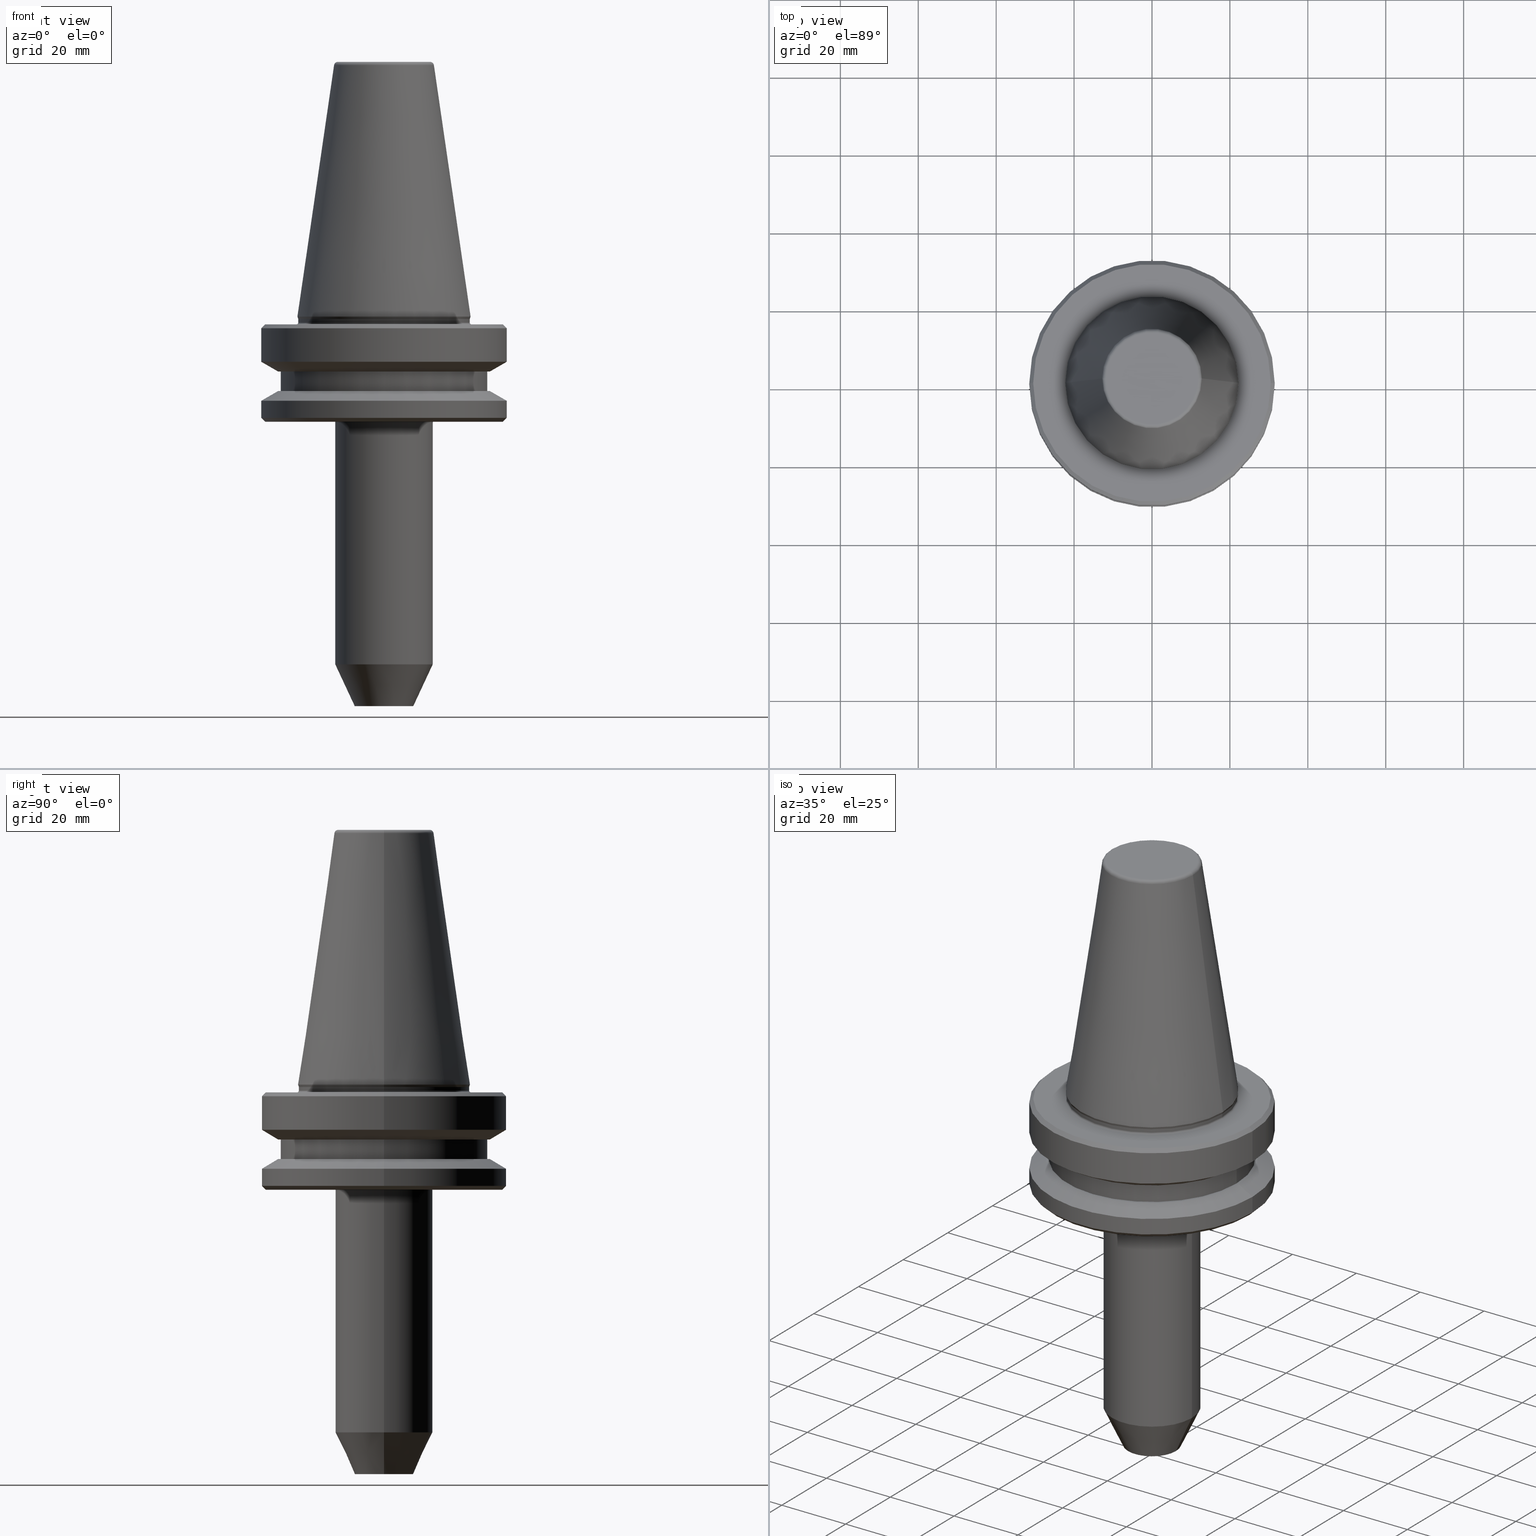
[diagram: canonical four-view strip — front | top / right | iso, engineering-drawing reading convention]
A machine part, canonical four-view strip (front | top / right | iso — engineering-drawing reading convention). The complete STEP part file that produces these views, byte-faithful:
ISO-10303-21;
HEADER;
FILE_DESCRIPTION (( 'STEP AP203' ),
    '1' );
FILE_NAME ('BT40 WE06 100 AD-6.3G15000 SL.STEP',
    '2019-05-22T06:55:32',
    ( '' ),
    ( '' ),
    'SwSTEP 2.0',
    'SolidWorks 2014',
    '' );
FILE_SCHEMA (( 'CONFIG_CONTROL_DESIGN' ));
ENDSEC;

DATA;
#1 = DIRECTION ( 'NONE',  ( 1.000000000000000000, 0.0000000000000000000, 0.0000000000000000000 ) ) ;
#2 = EDGE_CURVE ( 'NONE', #655, #100, #756, .T. ) ;
#3 = FACE_OUTER_BOUND ( 'NONE', #538, .T. ) ;
#4 = ADVANCED_FACE ( 'NONE', ( #307 ), #104, .F. ) ;
#5 = CARTESIAN_POINT ( 'NONE',  ( -31.49999999999975100, 0.0000000000000000000, -3.000000000000557800 ) ) ;
#6 = SECURITY_CLASSIFICATION_LEVEL ( 'unclassified' ) ;
#7 = DIRECTION ( 'NONE',  ( 0.0000000000000000000, 0.0000000000000000000, -1.000000000000000000 ) ) ;
#8 = CARTESIAN_POINT ( 'NONE',  ( 0.0000000000000000000, 0.0000000000000000000, -19.10000000000095000 ) ) ;
#9 = VERTEX_POINT ( 'NONE', #938 ) ;
#10 = CIRCLE ( 'NONE', #311, 0.4000000000000611400 ) ;
#11 = ORIENTED_EDGE ( 'NONE', *, *, #637, .F. ) ;
#12 = CC_DESIGN_PERSON_AND_ORGANIZATION_ASSIGNMENT ( #591, #898, ( #704 ) ) ;
#13 = LINE ( 'NONE', #495, #14 ) ;
#14 = VECTOR ( 'NONE', #925, 1000.000000000000000 ) ;
#15 = DIRECTION ( 'NONE',  ( -0.0000000000000000000, -0.0000000000000000000, 1.000000000000000000 ) ) ;
#16 = EDGE_CURVE ( 'NONE', #956, #941, #729, .T. ) ;
#17 = DIRECTION ( 'NONE',  ( -0.0000000000000000000, -0.0000000000000000000, 1.000000000000000000 ) ) ;
#18 = LINE ( 'NONE', #82, #27 ) ;
#19 = AXIS2_PLACEMENT_3D ( 'NONE', #350, #427, #99 ) ;
#20 = EDGE_LOOP ( 'NONE', ( #269, #316, #329, #648 ) ) ;
#21 = AXIS2_PLACEMENT_3D ( 'NONE', #206, #980, #123 ) ;
#22 = ORIENTED_EDGE ( 'NONE', *, *, #878, .F. ) ;
#23 = VECTOR ( 'NONE', #727, 1000.000000000000000 ) ;
#24 = LOCAL_TIME ( 12, 25, 32.00000000000000000, #248 ) ;
#25 = ORIENTED_EDGE ( 'NONE', *, *, #746, .T. ) ;
#26 = VECTOR ( 'NONE', #990, 1000.000000000000000 ) ;
#27 = VECTOR ( 'NONE', #313, 1000.000000000000000 ) ;
#28 = CARTESIAN_POINT ( 'NONE',  ( 0.0000000000000000000, 0.0000000000000000000, 94.60731411746931500 ) ) ;
#29 = APPROVAL_ROLE ( '' ) ;
#30 = CARTESIAN_POINT ( 'NONE',  ( 0.0000000000000000000, 0.0000000000000000000, -26.00000000000057900 ) ) ;
#31 = DIRECTION ( 'NONE',  ( -0.0000000000000000000, -0.0000000000000000000, 1.000000000000000000 ) ) ;
#32 = DIRECTION ( 'NONE',  ( 1.000000000000000000, 0.0000000000000000000, 0.0000000000000000000 ) ) ;
#33 = EDGE_LOOP ( 'NONE', ( #882, #666, #273, #759 ) ) ;
#34 = ORIENTED_EDGE ( 'NONE', *, *, #185, .F. ) ;
#35 = DIRECTION ( 'NONE',  ( 0.0000000000000000000, 0.0000000000000000000, -1.000000000000000000 ) ) ;
#36 = ORIENTED_EDGE ( 'NONE', *, *, #361, .F. ) ;
#37 = AXIS2_PLACEMENT_3D ( 'NONE', #544, #745, #718 ) ;
#38 = CARTESIAN_POINT ( 'NONE',  ( 0.0000000000000000000, 0.0000000000000000000, -19.10000000000095000 ) ) ;
#39 = CARTESIAN_POINT ( 'NONE',  ( -22.49999999999974400, 2.755455298081513200E-015, -1.500000000000556400 ) ) ;
#40 = DIRECTION ( 'NONE',  ( -0.0000000000000000000, -0.0000000000000000000, 1.000000000000000000 ) ) ;
#41 = AXIS2_PLACEMENT_3D ( 'NONE', #49, #764, #690 ) ;
#42 = DIRECTION ( 'NONE',  ( 1.000000000000000000, 0.0000000000000000000, 0.0000000000000000000 ) ) ;
#43 = ORIENTED_EDGE ( 'NONE', *, *, #867, .T. ) ;
#44 = EDGE_LOOP ( 'NONE', ( #113, #227, #261, #525 ) ) ;
#45 = FACE_OUTER_BOUND ( 'NONE', #781, .T. ) ;
#46 = CALENDAR_DATE ( 2019, 22, 5 ) ;
#47 = AXIS2_PLACEMENT_3D ( 'NONE', #833, #373, #32 ) ;
#48 = AXIS2_PLACEMENT_3D ( 'NONE', #371, #207, #793 ) ;
#49 = CARTESIAN_POINT ( 'NONE',  ( 11.82266927716790800, 0.0000000000000000000, 64.39999999999984900 ) ) ;
#50 = ADVANCED_FACE ( 'NONE', ( #504 ), #855, .T. ) ;
#51 = DIRECTION ( 'NONE',  ( -0.0000000000000000000, -0.0000000000000000000, 1.000000000000000000 ) ) ;
#52 = EDGE_CURVE ( 'NONE', #836, #770, #896, .T. ) ;
#53 = DIRECTION ( 'NONE',  ( -0.0000000000000000000, -0.0000000000000000000, 1.000000000000000000 ) ) ;
#54 = DIRECTION ( 'NONE',  ( 0.0000000000000000000, -1.000000000000000000, 0.0000000000000000000 ) ) ;
#55 = VERTEX_POINT ( 'NONE', #646 ) ;
#56 = PERSON_AND_ORGANIZATION_ROLE ( 'design_supplier' ) ;
#57 = ORIENTED_EDGE ( 'NONE', *, *, #79, .T. ) ;
#58 = ORIENTED_EDGE ( 'NONE', *, *, #907, .F. ) ;
#59 = ADVANCED_FACE ( 'NONE', ( #798, #797 ), #374, .F. ) ;
#60 = ORIENTED_EDGE ( 'NONE', *, *, #740, .T. ) ;
#61 = VERTEX_POINT ( 'NONE', #352 ) ;
#62 = EDGE_LOOP ( 'NONE', ( #921, #853, #391, #383 ) ) ;
#63 = AXIS2_PLACEMENT_3D ( 'NONE', #632, #166, #149 ) ;
#64 = FACE_BOUND ( 'NONE', #661, .T. ) ;
#65 = CARTESIAN_POINT ( 'NONE',  ( 0.0000000000000000000, 0.0000000000000000000, 65.39999999999984900 ) ) ;
#66 = EDGE_CURVE ( 'NONE', #132, #612, #484, .T. ) ;
#67 = AXIS2_PLACEMENT_3D ( 'NONE', #969, #734, #916 ) ;
#68 = CC_DESIGN_DATE_AND_TIME_ASSIGNMENT ( #758, #751, ( #704 ) ) ;
#69 = ORIENTED_EDGE ( 'NONE', *, *, #620, .T. ) ;
#70 = EDGE_LOOP ( 'NONE', ( #1000, #103, #270, #407 ) ) ;
#71 = ADVANCED_FACE ( 'NONE', ( #838 ), #806, .T. ) ;
#72 = CARTESIAN_POINT ( 'NONE',  ( 31.49999999999975100, 0.0000000000000000000, -21.60014200631771400 ) ) ;
#73 = PERSON_AND_ORGANIZATION ( #276, #294 ) ;
#74 = ORIENTED_EDGE ( 'NONE', *, *, #159, .F. ) ;
#75 = AXIS2_PLACEMENT_3D ( 'NONE', #884, #498, #477 ) ;
#76 = CARTESIAN_POINT ( 'NONE',  ( 0.0000000000000000000, 0.0000000000000000000, -0.6887132116605299000 ) ) ;
#77 = CC_DESIGN_SECURITY_CLASSIFICATION ( #704, ( #118 ) ) ;
#78 = FACE_OUTER_BOUND ( 'NONE', #339, .T. ) ;
#79 = EDGE_CURVE ( 'NONE', #579, #327, #408, .T. ) ;
#80 = DIRECTION ( 'NONE',  ( -0.0000000000000000000, -0.0000000000000000000, 1.000000000000000000 ) ) ;
#81 = AXIS2_PLACEMENT_3D ( 'NONE', #341, #120, #890 ) ;
#82 = CARTESIAN_POINT ( 'NONE',  ( 21.99999999999970200, 0.0000000000000000000, 94.60731411746931500 ) ) ;
#83 = ORIENTED_EDGE ( 'NONE', *, *, #366, .F. ) ;
#84 = ORIENTED_EDGE ( 'NONE', *, *, #278, .T. ) ;
#85 = ORIENTED_EDGE ( 'NONE', *, *, #629, .F. ) ;
#86 = EDGE_CURVE ( 'NONE', #100, #257, #448, .T. ) ;
#87 = AXIS2_PLACEMENT_3D ( 'NONE', #240, #775, #966 ) ;
#88 = DIRECTION ( 'NONE',  ( -0.0000000000000000000, -0.0000000000000000000, 1.000000000000000000 ) ) ;
#89 = EDGE_CURVE ( 'NONE', #655, #169, #989, .T. ) ;
#90 = ORIENTED_EDGE ( 'NONE', *, *, #662, .F. ) ;
#91 = AXIS2_PLACEMENT_3D ( 'NONE', #922, #400, #689 ) ;
#92 = DIRECTION ( 'NONE',  ( 0.0000000000000000000, 0.0000000000000000000, -1.000000000000000000 ) ) ;
#93 = ORIENTED_EDGE ( 'NONE', *, *, #278, .F. ) ;
#94 = ORIENTED_EDGE ( 'NONE', *, *, #115, .T. ) ;
#95 = ORIENTED_EDGE ( 'NONE', *, *, #880, .F. ) ;
#96 = AXIS2_PLACEMENT_3D ( 'NONE', #295, #663, #580 ) ;
#97 = EDGE_CURVE ( 'NONE', #634, #320, #199, .T. ) ;
#98 = DIRECTION ( 'NONE',  ( -1.000000000000000000, 0.0000000000000000000, -0.0000000000000000000 ) ) ;
#99 = DIRECTION ( 'NONE',  ( 1.000000000000000000, 0.0000000000000000000, 0.0000000000000000000 ) ) ;
#100 = VERTEX_POINT ( 'NONE', #735 ) ;
#101 = AXIS2_PLACEMENT_3D ( 'NONE', #478, #517, #992 ) ;
#102 = CARTESIAN_POINT ( 'NONE',  ( 0.0000000000000000000, 0.0000000000000000000, -3.000000000000557800 ) ) ;
#103 = ORIENTED_EDGE ( 'NONE', *, *, #2, .T. ) ;
#104 = TOROIDAL_SURFACE ( 'NONE', #524, 22.39999999999975300, 0.4000000000000612000 ) ;
#105 = TOROIDAL_SURFACE ( 'NONE', #101, 22.49999999999974400, 0.5000000000000282000 ) ;
#106 = CARTESIAN_POINT ( 'NONE',  ( -30.49999999999975100, 0.0000000000000000000, -2.000000000000556900 ) ) ;
#107 = AXIS2_PLACEMENT_3D ( 'NONE', #526, #88, #852 ) ;
#108 = AXIS2_PLACEMENT_3D ( 'NONE', #197, #615, #247 ) ;
#109 = CARTESIAN_POINT ( 'NONE',  ( 30.49999999999975100, 3.796405077356764300E-015, -2.000000000000556900 ) ) ;
#110 = CARTESIAN_POINT ( 'NONE',  ( -21.99999999999970200, 2.694222958124140100E-015, 94.60731411746931500 ) ) ;
#111 = DIRECTION ( 'NONE',  ( 1.000000000000000000, 0.0000000000000000000, 0.0000000000000000000 ) ) ;
#112 = EDGE_CURVE ( 'NONE', #984, #100, #742, .T. ) ;
#113 = ORIENTED_EDGE ( 'NONE', *, *, #86, .F. ) ;
#114 = DIRECTION ( 'NONE',  ( -0.7071067811865474600, 8.659560562354931600E-017, 0.7071067811865475700 ) ) ;
#115 = EDGE_CURVE ( 'NONE', #974, #854, #13, .T. ) ;
#116 = CIRCLE ( 'NONE', #75, 7.499999999999840100 ) ;
#117 = DIRECTION ( 'NONE',  ( -1.000000000000000000, 0.0000000000000000000, -0.0000000000000000000 ) ) ;
#118 = PRODUCT_DEFINITION_FORMATION_WITH_SPECIFIED_SOURCE ( 'ANY', '', #202, .NOT_KNOWN. ) ;
#119 = FACE_OUTER_BOUND ( 'NONE', #211, .T. ) ;
#120 = DIRECTION ( 'NONE',  ( -0.0000000000000000000, -0.0000000000000000000, 1.000000000000000000 ) ) ;
#121 = FACE_OUTER_BOUND ( 'NONE', #125, .T. ) ;
#122 = LINE ( 'NONE', #736, #219 ) ;
#123 = DIRECTION ( 'NONE',  ( -1.000000000000000000, 0.0000000000000000000, -0.0000000000000000000 ) ) ;
#124 = CARTESIAN_POINT ( 'NONE',  ( 31.49999999999975100, 0.0000000000000000000, 94.60731411746931500 ) ) ;
#125 = EDGE_LOOP ( 'NONE', ( #494, #970, #242, #11 ) ) ;
#126 = EDGE_LOOP ( 'NONE', ( #784, #786, #623, #459 ) ) ;
#127 = AXIS2_PLACEMENT_3D ( 'NONE', #389, #608, #42 ) ;
#128 = EDGE_LOOP ( 'NONE', ( #847, #201, #447, #804 ) ) ;
#129 = COORDINATED_UNIVERSAL_TIME_OFFSET ( 5, 30, .AHEAD. ) ;
#130 = AXIS2_PLACEMENT_3D ( 'NONE', #474, #224, #218 ) ;
#131 = DIRECTION ( 'NONE',  ( -0.0000000000000000000, -0.0000000000000000000, 1.000000000000000000 ) ) ;
#132 = VERTEX_POINT ( 'NONE', #336 ) ;
#133 = CIRCLE ( 'NONE', #286, 26.49999999999996800 ) ;
#134 = DIRECTION ( 'NONE',  ( 1.000000000000000000, 0.0000000000000000000, 0.0000000000000000000 ) ) ;
#135 = DIRECTION ( 'NONE',  ( 1.000000000000000000, 0.0000000000000000000, 0.0000000000000000000 ) ) ;
#136 = DIRECTION ( 'NONE',  ( -0.0000000000000000000, -0.0000000000000000000, 1.000000000000000000 ) ) ;
#137 = ORIENTED_EDGE ( 'NONE', *, *, #112, .T. ) ;
#138 = DIRECTION ( 'NONE',  ( -1.000000000000000000, 0.0000000000000000000, 0.0000000000000000000 ) ) ;
#139 = VERTEX_POINT ( 'NONE', #762 ) ;
#140 = CONICAL_SURFACE ( 'NONE', #707, 30.49999999999930400, 0.7853981633974482800 ) ;
#141 = EDGE_LOOP ( 'NONE', ( #680, #788 ) ) ;
#142 = AXIS2_PLACEMENT_3D ( 'NONE', #417, #31, #162 ) ;
#143 = ADVANCED_FACE ( 'NONE', ( #943 ), #670, .T. ) ;
#144 = AXIS2_PLACEMENT_3D ( 'NONE', #305, #691, #819 ) ;
#145 = AXIS2_PLACEMENT_3D ( 'NONE', #722, #264, #687 ) ;
#146 = PERSON_AND_ORGANIZATION_ROLE ( 'creator' ) ;
#147 = ADVANCED_FACE ( 'NONE', ( #119 ), #155, .T. ) ;
#148 = FACE_BOUND ( 'NONE', #815, .T. ) ;
#149 = DIRECTION ( 'NONE',  ( 1.000000000000000000, 0.0000000000000000000, 0.0000000000000000000 ) ) ;
#150 = EDGE_CURVE ( 'NONE', #854, #971, #683, .T. ) ;
#151 = CIRCLE ( 'NONE', #285, 21.99999999999968700 ) ;
#152 = DIRECTION ( 'NONE',  ( 0.0000000000000000000, 0.0000000000000000000, -1.000000000000000000 ) ) ;
#153 = ORIENTED_EDGE ( 'NONE', *, *, #66, .T. ) ;
#154 = ORIENTED_EDGE ( 'NONE', *, *, #740, .F. ) ;
#155 = CONICAL_SURFACE ( 'NONE', #639, 31.49999999999975100, 0.7853981633974482800 ) ;
#156 = DIRECTION ( 'NONE',  ( 1.000000000000000000, 0.0000000000000000000, 0.0000000000000000000 ) ) ;
#157 = LOCAL_TIME ( 12, 25, 32.00000000000000000, #384 ) ;
#158 = ORIENTED_EDGE ( 'NONE', *, *, #79, .F. ) ;
#159 = EDGE_CURVE ( 'NONE', #933, #262, #659, .T. ) ;
#160 = AXIS2_PLACEMENT_3D ( 'NONE', #467, #794, #255 ) ;
#161 = CYLINDRICAL_SURFACE ( 'NONE', #597, 21.99999999999970200 ) ;
#162 = DIRECTION ( 'NONE',  ( 1.000000000000000000, 0.0000000000000000000, 0.0000000000000000000 ) ) ;
#163 = CYLINDRICAL_SURFACE ( 'NONE', #238, 31.49999999999975100 ) ;
#164 = DIRECTION ( 'NONE',  ( 1.000000000000000000, 0.0000000000000000000, 0.0000000000000000000 ) ) ;
#165 = AXIS2_PLACEMENT_3D ( 'NONE', #279, #908, #187 ) ;
#166 = DIRECTION ( 'NONE',  ( -0.0000000000000000000, -0.0000000000000000000, 1.000000000000000000 ) ) ;
#167 = AXIS2_PLACEMENT_3D ( 'NONE', #30, #848, #865 ) ;
#168 = EDGE_CURVE ( 'NONE', #257, #698, #590, .T. ) ;
#169 = VERTEX_POINT ( 'NONE', #593 ) ;
#170 = CARTESIAN_POINT ( 'NONE',  ( 31.49999999999975100, 0.0000000000000000000, -3.000000000000557800 ) ) ;
#171 = EDGE_LOOP ( 'NONE', ( #353, #302, #893, #755 ) ) ;
#172 = ORIENTED_EDGE ( 'NONE', *, *, #470, .F. ) ;
#173 = FACE_OUTER_BOUND ( 'NONE', #885, .T. ) ;
#174 = EDGE_CURVE ( 'NONE', #327, #579, #932, .T. ) ;
#175 = CARTESIAN_POINT ( 'NONE',  ( 0.0000000000000000000, 0.0000000000000000000, -14.10000000000050100 ) ) ;
#176 = CARTESIAN_POINT ( 'NONE',  ( -31.49999999999975100, 3.857637417314131900E-015, 94.60731411746931500 ) ) ;
#177 = AXIS2_PLACEMENT_3D ( 'NONE', #606, #946, #968 ) ;
#178 = AXIS2_PLACEMENT_3D ( 'NONE', #192, #834, #135 ) ;
#179 = CARTESIAN_POINT ( 'NONE',  ( 22.02412295168545200, 0.0000000000000000000, -0.5519051543299152700 ) ) ;
#180 = AXIS2_PLACEMENT_3D ( 'NONE', #700, #844, #487 ) ;
#181 = FACE_OUTER_BOUND ( 'NONE', #428, .T. ) ;
#182 = APPROVAL_DATE_TIME ( #411, #265 ) ;
#183 = CARTESIAN_POINT ( 'NONE',  ( 0.0000000000000000000, 0.0000000000000000000, -21.60014200631771400 ) ) ;
#184 = ORIENTED_EDGE ( 'NONE', *, *, #66, .F. ) ;
#185 = EDGE_CURVE ( 'NONE', #449, #971, #283, .T. ) ;
#186 = LINE ( 'NONE', #412, #321 ) ;
#187 = DIRECTION ( 'NONE',  ( 1.000000000000000000, 0.0000000000000000000, 0.0000000000000000000 ) ) ;
#188 = AXIS2_PLACEMENT_3D ( 'NONE', #516, #967, #892 ) ;
#189 = CARTESIAN_POINT ( 'NONE',  ( 0.0000000000000000000, 0.0000000000000000000, -19.10000000000095000 ) ) ;
#190 = DIRECTION ( 'NONE',  ( -0.0000000000000000000, -0.0000000000000000000, 1.000000000000000000 ) ) ;
#191 = CARTESIAN_POINT ( 'NONE',  ( 0.0000000000000000000, 0.0000000000000000000, 64.39999999999984900 ) ) ;
#192 = CARTESIAN_POINT ( 'NONE',  ( 0.0000000000000000000, 0.0000000000000000000, -89.27746539754971900 ) ) ;
#193 = EDGE_CURVE ( 'NONE', #55, #998, #306, .T. ) ;
#194 = ORIENTED_EDGE ( 'NONE', *, *, #880, .T. ) ;
#195 = CARTESIAN_POINT ( 'NONE',  ( -31.49999999999975100, 3.857637417314131900E-015, -3.000000000000557800 ) ) ;
#196 = AXIS2_PLACEMENT_3D ( 'NONE', #950, #136, #534 ) ;
#197 = CARTESIAN_POINT ( 'NONE',  ( 0.0000000000000000000, 0.0000000000000000000, 94.60731411746931500 ) ) ;
#198 = ORIENTED_EDGE ( 'NONE', *, *, #654, .F. ) ;
#199 = CIRCLE ( 'NONE', #67, 7.499999999999840100 ) ;
#200 = ORIENTED_EDGE ( 'NONE', *, *, #222, .F. ) ;
#201 = ORIENTED_EDGE ( 'NONE', *, *, #868, .T. ) ;
#202 = PRODUCT ( 'BT40 WE06 100 AD-6.3G15000 SL', 'BT40 WE06 100 AD-6.3G15000 SL', '', ( #338 ) ) ;
#203 = DIRECTION ( 'NONE',  ( 1.000000000000000000, 0.0000000000000000000, 0.0000000000000000000 ) ) ;
#204 = CIRCLE ( 'NONE', #586, 11.82266927716801800 ) ;
#205 = DIRECTION ( 'NONE',  ( -0.0000000000000000000, -0.0000000000000000000, 1.000000000000000000 ) ) ;
#206 = CARTESIAN_POINT ( 'NONE',  ( 0.0000000000000000000, 26.49999999999996800, -19.10000000000095000 ) ) ;
#207 = DIRECTION ( 'NONE',  ( 0.0000000000000000000, -0.0000000000000000000, 1.000000000000000000 ) ) ;
#208 = DIRECTION ( 'NONE',  ( -0.0000000000000000000, -0.0000000000000000000, 1.000000000000000000 ) ) ;
#209 = CARTESIAN_POINT ( 'NONE',  ( 0.0000000000000000000, 0.0000000000000000000, -0.6887132116605299000 ) ) ;
#210 = EDGE_CURVE ( 'NONE', #836, #217, #565, .T. ) ;
#211 = EDGE_LOOP ( 'NONE', ( #523, #194, #669, #315 ) ) ;
#212 = AXIS2_PLACEMENT_3D ( 'NONE', #877, #464, #332 ) ;
#213 = VERTEX_POINT ( 'NONE', #773 ) ;
#214 = ORIENTED_EDGE ( 'NONE', *, *, #115, .F. ) ;
#215 = APPROVAL_PERSON_ORGANIZATION ( #439, #265, #766 ) ;
#216 = ORIENTED_EDGE ( 'NONE', *, *, #268, .T. ) ;
#217 = VERTEX_POINT ( 'NONE', #572 ) ;
#218 = DIRECTION ( 'NONE',  ( 1.000000000000000000, 0.0000000000000000000, 0.0000000000000000000 ) ) ;
#219 = VECTOR ( 'NONE', #899, 1000.000000000000000 ) ;
#220 = DIRECTION ( 'NONE',  ( -0.0000000000000000000, -0.0000000000000000000, 1.000000000000000000 ) ) ;
#221 = CARTESIAN_POINT ( 'NONE',  ( 31.49999999999975100, 0.0000000000000000000, -11.59985799368418200 ) ) ;
#222 = EDGE_CURVE ( 'NONE', #320, #634, #116, .T. ) ;
#223 = AXIS2_PLACEMENT_3D ( 'NONE', #299, #260, #912 ) ;
#224 = DIRECTION ( 'NONE',  ( -0.0000000000000000000, -0.0000000000000000000, 1.000000000000000000 ) ) ;
#225 = ADVANCED_FACE ( 'NONE', ( #181 ), #635, .T. ) ;
#226 = CARTESIAN_POINT ( 'NONE',  ( 7.499999999999840100, 0.0000000000000000000, -100.0000000000978400 ) ) ;
#227 = ORIENTED_EDGE ( 'NONE', *, *, #637, .T. ) ;
#228 = CARTESIAN_POINT ( 'NONE',  ( 0.0000000000000000000, 0.0000000000000000000, -3.000000000000557800 ) ) ;
#229 = CIRCLE ( 'NONE', #142, 22.02412295168544900 ) ;
#230 = EDGE_LOOP ( 'NONE', ( #214, #90, #351, #471 ) ) ;
#231 = CC_DESIGN_PERSON_AND_ORGANIZATION_ASSIGNMENT ( #461, #146, ( #368 ) ) ;
#232 = EDGE_CURVE ( 'NONE', #971, #854, #370, .T. ) ;
#233 = CONICAL_SURFACE ( 'NONE', #500, 7.499999999999840100, 0.4363323129985622300 ) ;
#234 = DIRECTION ( 'NONE',  ( -0.0000000000000000000, -0.0000000000000000000, 1.000000000000000000 ) ) ;
#235 = SHAPE_DEFINITION_REPRESENTATION ( #949, #277 ) ;
#236 = CARTESIAN_POINT ( 'NONE',  ( 0.0000000000000000000, 0.0000000000000000000, 65.39999999999984900 ) ) ;
#237 = EDGE_CURVE ( 'NONE', #692, #262, #552, .T. ) ;
#238 = AXIS2_PLACEMENT_3D ( 'NONE', #750, #779, #267 ) ;
#239 = AXIS2_PLACEMENT_3D ( 'NONE', #175, #377, #423 ) ;
#240 = CARTESIAN_POINT ( 'NONE',  ( 0.0000000000000000000, 0.0000000000000000000, -2.000000000000556900 ) ) ;
#241 = CIRCLE ( 'NONE', #947, 31.49999999999975100 ) ;
#242 = ORIENTED_EDGE ( 'NONE', *, *, #858, .T. ) ;
#243 = ORIENTED_EDGE ( 'NONE', *, *, #159, .T. ) ;
#244 = CARTESIAN_POINT ( 'NONE',  ( 12.81220206925746700, 0.0000000000000000000, 64.54430818888812400 ) ) ;
#245 = ORIENTED_EDGE ( 'NONE', *, *, #357, .F. ) ;
#246 = VECTOR ( 'NONE', #914, 1000.000000000000000 ) ;
#247 = DIRECTION ( 'NONE',  ( 1.000000000000000000, 0.0000000000000000000, 0.0000000000000000000 ) ) ;
#248 = COORDINATED_UNIVERSAL_TIME_OFFSET ( 5, 30, .AHEAD. ) ;
#249 = CLOSED_SHELL ( 'NONE', ( #973, #869, #404, #480, #719, #147, #699, #386, #290, #726, #312, #787, #225, #825, #897, #714, #463, #743, #981, #717, #59, #71, #983, #363, #532, #919, #703, #509, #977, #415, #300, #401, #50, #4, #757, #143 ) ) ;
#250 = ORIENTED_EDGE ( 'NONE', *, *, #357, .T. ) ;
#251 = CARTESIAN_POINT ( 'NONE',  ( 27.16962701892267200, 0.0000000000000000000, -14.10000000000050100 ) ) ;
#252 = LINE ( 'NONE', #778, #569 ) ;
#253 = DIRECTION ( 'NONE',  ( 1.000000000000000000, 0.0000000000000000000, 0.0000000000000000000 ) ) ;
#254 = CONICAL_SURFACE ( 'NONE', #842, 31.49999999999975100, 0.7853981633974482800 ) ;
#255 = DIRECTION ( 'NONE',  ( 1.000000000000000000, 0.0000000000000000000, 0.0000000000000000000 ) ) ;
#256 = AXIS2_PLACEMENT_3D ( 'NONE', #505, #205, #503 ) ;
#257 = VERTEX_POINT ( 'NONE', #195 ) ;
#258 = FACE_OUTER_BOUND ( 'NONE', #62, .T. ) ;
#259 = VERTEX_POINT ( 'NONE', #403 ) ;
#260 = DIRECTION ( 'NONE',  ( -0.0000000000000000000, -0.0000000000000000000, 1.000000000000000000 ) ) ;
#261 = ORIENTED_EDGE ( 'NONE', *, *, #629, .T. ) ;
#262 = VERTEX_POINT ( 'NONE', #760 ) ;
#263 = VERTEX_POINT ( 'NONE', #109 ) ;
#264 = DIRECTION ( 'NONE',  ( 0.0000000000000000000, -0.0000000000000000000, 1.000000000000000000 ) ) ;
#265 = APPROVAL ( #828, 'UNSPECIFIED' ) ;
#266 = EDGE_CURVE ( 'NONE', #716, #257, #578, .T. ) ;
#267 = DIRECTION ( 'NONE',  ( 1.000000000000000000, 0.0000000000000000000, 0.0000000000000000000 ) ) ;
#268 = EDGE_CURVE ( 'NONE', #716, #263, #426, .T. ) ;
#269 = ORIENTED_EDGE ( 'NONE', *, *, #965, .F. ) ;
#270 = ORIENTED_EDGE ( 'NONE', *, *, #112, .F. ) ;
#271 = ORIENTED_EDGE ( 'NONE', *, *, #16, .F. ) ;
#272 = LOCAL_TIME ( 12, 25, 32.00000000000000000, #485 ) ;
#273 = ORIENTED_EDGE ( 'NONE', *, *, #470, .T. ) ;
#274 = ORIENTED_EDGE ( 'NONE', *, *, #749, .T. ) ;
#275 = AXIS2_PLACEMENT_3D ( 'NONE', #667, #92, #672 ) ;
#276 = PERSON ( 'UNSPECIFIED', 'UNSPECIFIED', 'UNSPECIFIED', ('UNSPECIFIED'), ('UNSPECIFIED'), ('UNSPECIFIED') ) ;
#277 = ADVANCED_BREP_SHAPE_REPRESENTATION ( 'BT40 WE06 100 AD-6.3G15000 SL', ( #640, #918 ), #826 ) ;
#278 = EDGE_CURVE ( 'NONE', #262, #612, #473, .T. ) ;
#279 = CARTESIAN_POINT ( 'NONE',  ( 0.0000000000000000000, 0.0000000000000000000, -0.6887132116605299000 ) ) ;
#280 = ORIENTED_EDGE ( 'NONE', *, *, #575, .F. ) ;
#281 = EDGE_LOOP ( 'NONE', ( #645, #395 ) ) ;
#282 = ORIENTED_EDGE ( 'NONE', *, *, #174, .F. ) ;
#283 = LINE ( 'NONE', #468, #708 ) ;
#284 = AXIS2_PLACEMENT_3D ( 'NONE', #511, #588, #518 ) ;
#285 = AXIS2_PLACEMENT_3D ( 'NONE', #76, #482, #134 ) ;
#286 = AXIS2_PLACEMENT_3D ( 'NONE', #605, #451, #325 ) ;
#287 = CC_DESIGN_DATE_AND_TIME_ASSIGNMENT ( #636, #297, ( #368 ) ) ;
#288 = DIRECTION ( 'NONE',  ( -0.1443081888881845600, 0.0000000000000000000, -0.9895327920891818800 ) ) ;
#289 = DIRECTION ( 'NONE',  ( -0.0000000000000000000, -0.0000000000000000000, 1.000000000000000000 ) ) ;
#290 = ADVANCED_FACE ( 'NONE', ( #721 ), #493, .T. ) ;
#291 = AXIS2_PLACEMENT_3D ( 'NONE', #958, #430, #564 ) ;
#292 = DIRECTION ( 'NONE',  ( -0.0000000000000000000, -0.0000000000000000000, 1.000000000000000000 ) ) ;
#293 = ORIENTED_EDGE ( 'NONE', *, *, #886, .T. ) ;
#294 = ORGANIZATION ( 'UNSPECIFIED', 'UNSPECIFIED', '' ) ;
#295 = CARTESIAN_POINT ( 'NONE',  ( 0.0000000000000000000, 0.0000000000000000000, -14.10000000000050100 ) ) ;
#296 = CARTESIAN_POINT ( 'NONE',  ( -27.16962701892267200, 3.592478546794620500E-015, -14.10000000000050100 ) ) ;
#297 = DATE_TIME_ROLE ( 'creation_date' ) ;
#298 = FACE_OUTER_BOUND ( 'NONE', #126, .T. ) ;
#299 = CARTESIAN_POINT ( 'NONE',  ( 0.0000000000000000000, 0.0000000000000000000, -0.5519051543299152700 ) ) ;
#300 = ADVANCED_FACE ( 'NONE', ( #551, #45 ), #521, .F. ) ;
#301 = DIRECTION ( 'NONE',  ( -0.4226182617406811800, 5.175581015019435100E-017, 0.9063077870366584900 ) ) ;
#302 = ORIENTED_EDGE ( 'NONE', *, *, #455, .T. ) ;
#303 = CARTESIAN_POINT ( 'NONE',  ( 22.02412295168544900, 0.0000000000000000000, -0.5519051543299152700 ) ) ;
#304 = ORIENTED_EDGE ( 'NONE', *, *, #582, .T. ) ;
#305 = CARTESIAN_POINT ( 'NONE',  ( 0.0000000000000000000, 0.0000000000000000000, -21.60014200631771400 ) ) ;
#306 = CIRCLE ( 'NONE', #379, 26.49999999999996800 ) ;
#307 = FACE_OUTER_BOUND ( 'NONE', #644, .T. ) ;
#308 = CIRCLE ( 'NONE', #901, 0.5000000000000282000 ) ;
#309 = CARTESIAN_POINT ( 'NONE',  ( 0.0000000000000000000, 0.0000000000000000000, -89.27746539754971900 ) ) ;
#310 = CARTESIAN_POINT ( 'NONE',  ( 0.0000000000000000000, 0.0000000000000000000, -27.00000000000102300 ) ) ;
#311 = AXIS2_PLACEMENT_3D ( 'NONE', #479, #54, #152 ) ;
#312 = ADVANCED_FACE ( 'NONE', ( #173 ), #961, .T. ) ;
#313 = DIRECTION ( 'NONE',  ( -0.0000000000000000000, -0.0000000000000000000, 1.000000000000000000 ) ) ;
#314 = CARTESIAN_POINT ( 'NONE',  ( 30.49999999999930400, 0.0000000000000000000, -27.00000000000102300 ) ) ;
#315 = ORIENTED_EDGE ( 'NONE', *, *, #266, .F. ) ;
#316 = ORIENTED_EDGE ( 'NONE', *, *, #878, .T. ) ;
#317 = CARTESIAN_POINT ( 'NONE',  ( -30.49999999999930400, 3.735172737399342300E-015, -27.00000000000102300 ) ) ;
#318 = EDGE_LOOP ( 'NONE', ( #280, #862, #330, #813 ) ) ;
#319 = CIRCLE ( 'NONE', #626, 1.000000000000257600 ) ;
#320 = VERTEX_POINT ( 'NONE', #739 ) ;
#321 = VECTOR ( 'NONE', #17, 1000.000000000000000 ) ;
#322 = FACE_OUTER_BOUND ( 'NONE', #141, .T. ) ;
#323 = DIRECTION ( 'NONE',  ( 1.000000000000000000, 0.0000000000000000000, 0.0000000000000000000 ) ) ;
#324 = CYLINDRICAL_SURFACE ( 'NONE', #108, 26.49999999999996800 ) ;
#325 = DIRECTION ( 'NONE',  ( 1.000000000000000000, 0.0000000000000000000, 0.0000000000000000000 ) ) ;
#326 = DIRECTION ( 'NONE',  ( -0.0000000000000000000, -0.0000000000000000000, 1.000000000000000000 ) ) ;
#327 = VERTEX_POINT ( 'NONE', #405 ) ;
#328 = DESIGN_CONTEXT ( 'detailed design', #774, 'design' ) ;
#329 = ORIENTED_EDGE ( 'NONE', *, *, #366, .T. ) ;
#330 = ORIENTED_EDGE ( 'NONE', *, *, #520, .T. ) ;
#331 = APPROVAL_DATE_TIME ( #542, #891 ) ;
#332 = DIRECTION ( 'NONE',  ( 1.000000000000000000, 0.0000000000000000000, 0.0000000000000000000 ) ) ;
#333 =( NAMED_UNIT ( * ) PLANE_ANGLE_UNIT ( ) SI_UNIT ( $, .RADIAN. ) );
#334 = DIRECTION ( 'NONE',  ( 1.000000000000000000, 0.0000000000000000000, 0.0000000000000000000 ) ) ;
#335 = AXIS2_PLACEMENT_3D ( 'NONE', #380, #220, #999 ) ;
#336 = CARTESIAN_POINT ( 'NONE',  ( 31.49999999999975100, 0.0000000000000000000, -26.00000000000057900 ) ) ;
#337 = AXIS2_PLACEMENT_3D ( 'NONE', #705, #530, #976 ) ;
#338 = MECHANICAL_CONTEXT ( 'NONE', #475, 'mechanical' ) ;
#339 = EDGE_LOOP ( 'NONE', ( #381, #715, #539, #429 ) ) ;
#340 = ORIENTED_EDGE ( 'NONE', *, *, #266, .T. ) ;
#341 = CARTESIAN_POINT ( 'NONE',  ( 0.0000000000000000000, 0.0000000000000000000, -27.00000000000102300 ) ) ;
#342 = EDGE_LOOP ( 'NONE', ( #754, #293 ) ) ;
#343 = EDGE_CURVE ( 'NONE', #634, #770, #772, .T. ) ;
#344 = DIRECTION ( 'NONE',  ( -0.0000000000000000000, -0.0000000000000000000, 1.000000000000000000 ) ) ;
#345 = LINE ( 'NONE', #803, #387 ) ;
#346 = PLANE ( 'NONE',  #21 ) ;
#347 = TOROIDAL_SURFACE ( 'NONE', #37, 11.82266927716790800, 1.000000000000256700 ) ;
#348 = PERSON_AND_ORGANIZATION_ROLE ( 'design_owner' ) ;
#349 = APPROVAL ( #515, 'UNSPECIFIED' ) ;
#350 = CARTESIAN_POINT ( 'NONE',  ( 0.0000000000000000000, 0.0000000000000000000, 94.60731411746931500 ) ) ;
#351 = ORIENTED_EDGE ( 'NONE', *, *, #185, .T. ) ;
#352 = CARTESIAN_POINT ( 'NONE',  ( 22.49999999999974400, 0.0000000000000000000, -2.000000000000570700 ) ) ;
#353 = ORIENTED_EDGE ( 'NONE', *, *, #846, .T. ) ;
#354 = ORIENTED_EDGE ( 'NONE', *, *, #237, .T. ) ;
#355 = APPROVAL_PERSON_ORGANIZATION ( #566, #891, #29 ) ;
#356 = ORIENTED_EDGE ( 'NONE', *, *, #490, .F. ) ;
#357 = EDGE_CURVE ( 'NONE', #956, #988, #866, .T. ) ;
#358 = VERTEX_POINT ( 'NONE', #879 ) ;
#359 = CARTESIAN_POINT ( 'NONE',  ( -7.499999999999840100, 1.224646799147327000E-015, -100.0000000000978400 ) ) ;
#360 = LINE ( 'NONE', #964, #26 ) ;
#361 = EDGE_CURVE ( 'NONE', #998, #579, #820, .T. ) ;
#362 = FACE_OUTER_BOUND ( 'NONE', #996, .T. ) ;
#363 = ADVANCED_FACE ( 'NONE', ( #934 ), #651, .T. ) ;
#364 = CARTESIAN_POINT ( 'NONE',  ( 0.0000000000000000000, 0.0000000000000000000, -2.000000000000556900 ) ) ;
#365 = DIRECTION ( 'NONE',  ( 1.000000000000000000, 0.0000000000000000000, 0.0000000000000000000 ) ) ;
#366 = EDGE_CURVE ( 'NONE', #612, #262, #701, .T. ) ;
#367 = CARTESIAN_POINT ( 'NONE',  ( 0.0000000000000000000, 0.0000000000000000000, -27.00000000000102300 ) ) ;
#368 = PRODUCT_DEFINITION ( 'UNKNOWN', '', #118, #328 ) ;
#369 = ORIENTED_EDGE ( 'NONE', *, *, #499, .F. ) ;
#370 = CIRCLE ( 'NONE', #528, 22.22500000000038500 ) ;
#371 = CARTESIAN_POINT ( 'NONE',  ( 0.0000000000000000000, 26.49999999999996800, -14.10000000000050100 ) ) ;
#372 = AXIS2_PLACEMENT_3D ( 'NONE', #519, #618, #156 ) ;
#373 = DIRECTION ( 'NONE',  ( -0.0000000000000000000, -0.0000000000000000000, 1.000000000000000000 ) ) ;
#374 = PLANE ( 'NONE',  #679 ) ;
#375 = CARTESIAN_POINT ( 'NONE',  ( 0.0000000000000000000, 0.0000000000000000000, -3.000000000000557800 ) ) ;
#376 = DIRECTION ( 'NONE',  ( 0.0000000000000000000, 0.0000000000000000000, -1.000000000000000000 ) ) ;
#377 = DIRECTION ( 'NONE',  ( -0.0000000000000000000, -0.0000000000000000000, 1.000000000000000000 ) ) ;
#378 = AXIS2_PLACEMENT_3D ( 'NONE', #821, #792, #799 ) ;
#379 = AXIS2_PLACEMENT_3D ( 'NONE', #189, #53, #1 ) ;
#380 = CARTESIAN_POINT ( 'NONE',  ( 0.0000000000000000000, 0.0000000000000000000, -2.000000000000556900 ) ) ;
#381 = ORIENTED_EDGE ( 'NONE', *, *, #935, .F. ) ;
#382 = ORIENTED_EDGE ( 'NONE', *, *, #907, .T. ) ;
#383 = ORIENTED_EDGE ( 'NONE', *, *, #737, .F. ) ;
#384 = COORDINATED_UNIVERSAL_TIME_OFFSET ( 5, 30, .AHEAD. ) ;
#385 = EDGE_CURVE ( 'NONE', #139, #941, #843, .T. ) ;
#386 = ADVANCED_FACE ( 'NONE', ( #747 ), #488, .T. ) ;
#387 = VECTOR ( 'NONE', #454, 1000.000000000000000 ) ;
#388 = CARTESIAN_POINT ( 'NONE',  ( 0.0000000000000000000, 0.0000000000000000000, -0.5519051543299152700 ) ) ;
#389 = CARTESIAN_POINT ( 'NONE',  ( 0.0000000000000000000, 0.0000000000000000000, -100.0000000000978400 ) ) ;
#390 = CARTESIAN_POINT ( 'NONE',  ( 0.0000000000000000000, 0.0000000000000000000, 5.551115123125782700E-013 ) ) ;
#391 = ORIENTED_EDGE ( 'NONE', *, *, #52, .F. ) ;
#392 = EDGE_CURVE ( 'NONE', #263, #716, #497, .T. ) ;
#393 = EDGE_LOOP ( 'NONE', ( #198, #43, #945, #172 ) ) ;
#394 = DIRECTION ( 'NONE',  ( -0.0000000000000000000, -0.0000000000000000000, 1.000000000000000000 ) ) ;
#395 = ORIENTED_EDGE ( 'NONE', *, *, #554, .F. ) ;
#396 = EDGE_CURVE ( 'NONE', #491, #259, #508, .T. ) ;
#397 = CIRCLE ( 'NONE', #337, 0.5000000000000282000 ) ;
#398 = CYLINDRICAL_SURFACE ( 'NONE', #19, 31.49999999999975100 ) ;
#399 = AXIS2_PLACEMENT_3D ( 'NONE', #8, #940, #437 ) ;
#400 = DIRECTION ( 'NONE',  ( -0.0000000000000000000, -0.0000000000000000000, 1.000000000000000000 ) ) ;
#401 = ADVANCED_FACE ( 'NONE', ( #790 ), #801, .F. ) ;
#402 = CONICAL_SURFACE ( 'NONE', #188, 31.49999999999975100, 1.047197551196601200 ) ;
#403 = CARTESIAN_POINT ( 'NONE',  ( -21.99999999999971600, 2.724839128102827900E-015, -1.500000000000556400 ) ) ;
#404 = ADVANCED_FACE ( 'NONE', ( #416 ), #617, .F. ) ;
#405 = CARTESIAN_POINT ( 'NONE',  ( -26.49999999999996800, 3.245314017740481800E-015, -14.10000000000050100 ) ) ;
#406 = ORIENTED_EDGE ( 'NONE', *, *, #688, .F. ) ;
#407 = ORIENTED_EDGE ( 'NONE', *, *, #858, .F. ) ;
#408 = CIRCLE ( 'NONE', #959, 26.49999999999996800 ) ;
#409 = CYLINDRICAL_SURFACE ( 'NONE', #196, 31.49999999999975100 ) ;
#410 = DIRECTION ( 'NONE',  ( -0.0000000000000000000, -0.0000000000000000000, 1.000000000000000000 ) ) ;
#411 = DATE_AND_TIME ( #613, #807 ) ;
#412 = CARTESIAN_POINT ( 'NONE',  ( -26.49999999999996800, 3.245314017740481800E-015, 94.60731411746931500 ) ) ;
#413 = CIRCLE ( 'NONE', #178, 12.49999999999973400 ) ;
#414 = CIRCLE ( 'NONE', #771, 11.82266927716801800 ) ;
#415 = ADVANCED_FACE ( 'NONE', ( #431 ), #254, .T. ) ;
#416 = FACE_OUTER_BOUND ( 'NONE', #870, .T. ) ;
#417 = CARTESIAN_POINT ( 'NONE',  ( 0.0000000000000000000, 0.0000000000000000000, -0.5519051543299152700 ) ) ;
#418 = CARTESIAN_POINT ( 'NONE',  ( 0.0000000000000000000, 0.0000000000000000000, -27.00000000000102300 ) ) ;
#419 = AXIS2_PLACEMENT_3D ( 'NONE', #102, #462, #839 ) ;
#420 = DIRECTION ( 'NONE',  ( 0.3420201433264928300, 0.0000000000000000000, 0.9396926207856084500 ) ) ;
#421 = UNCERTAINTY_MEASURE_WITH_UNIT (LENGTH_MEASURE( 1.000000000000000100E-005 ), #671, 'distance_accuracy_value', 'NONE');
#422 = ORIENTED_EDGE ( 'NONE', *, *, #489, .T. ) ;
#423 = DIRECTION ( 'NONE',  ( 1.000000000000000000, 0.0000000000000000000, 0.0000000000000000000 ) ) ;
#424 = ORIENTED_EDGE ( 'NONE', *, *, #737, .T. ) ;
#425 = DIRECTION ( 'NONE',  ( 0.0000000000000000000, 0.0000000000000000000, -1.000000000000000000 ) ) ;
#426 = CIRCLE ( 'NONE', #335, 30.49999999999975100 ) ;
#427 = DIRECTION ( 'NONE',  ( -0.0000000000000000000, -0.0000000000000000000, 1.000000000000000000 ) ) ;
#428 = EDGE_LOOP ( 'NONE', ( #550, #872, #58, #514 ) ) ;
#429 = ORIENTED_EDGE ( 'NONE', *, *, #886, .F. ) ;
#430 = DIRECTION ( 'NONE',  ( -0.0000000000000000000, -0.0000000000000000000, 1.000000000000000000 ) ) ;
#431 = FACE_OUTER_BOUND ( 'NONE', #567, .T. ) ;
#432 = AXIS2_PLACEMENT_3D ( 'NONE', #501, #80, #365 ) ;
#433 = CARTESIAN_POINT ( 'NONE',  ( -31.49999999999975100, 3.857637417314131900E-015, 94.60731411746931500 ) ) ;
#434 = ORIENTED_EDGE ( 'NONE', *, *, #193, .F. ) ;
#435 = ORIENTED_EDGE ( 'NONE', *, *, #499, .T. ) ;
#436 = EDGE_LOOP ( 'NONE', ( #382, #610 ) ) ;
#437 = DIRECTION ( 'NONE',  ( 1.000000000000000000, 0.0000000000000000000, 0.0000000000000000000 ) ) ;
#438 = ORIENTED_EDGE ( 'NONE', *, *, #846, .F. ) ;
#439 = PERSON_AND_ORGANIZATION ( #276, #294 ) ;
#440 = CIRCLE ( 'NONE', #419, 31.49999999999975100 ) ;
#441 = DIRECTION ( 'NONE',  ( 1.000000000000000000, 0.0000000000000000000, 0.0000000000000000000 ) ) ;
#442 = CARTESIAN_POINT ( 'NONE',  ( 0.0000000000000000000, 0.0000000000000000000, -27.00000000000102300 ) ) ;
#443 = VECTOR ( 'NONE', #457, 1000.000000000000000 ) ;
#444 = DIRECTION ( 'NONE',  ( -0.0000000000000000000, -0.0000000000000000000, 1.000000000000000000 ) ) ;
#445 = ORIENTED_EDGE ( 'NONE', *, *, #232, .F. ) ;
#446 = CARTESIAN_POINT ( 'NONE',  ( 21.99999999999971600, 0.0000000000000000000, -1.500000000000556400 ) ) ;
#447 = ORIENTED_EDGE ( 'NONE', *, *, #210, .T. ) ;
#448 = LINE ( 'NONE', #176, #246 ) ;
#449 = VERTEX_POINT ( 'NONE', #697 ) ;
#450 = CARTESIAN_POINT ( 'NONE',  ( -21.99999999999968700, 2.694222958124139300E-015, -0.6887132116605299000 ) ) ;
#451 = DIRECTION ( 'NONE',  ( -0.0000000000000000000, -0.0000000000000000000, 1.000000000000000000 ) ) ;
#452 = FACE_OUTER_BOUND ( 'NONE', #393, .T. ) ;
#453 = CARTESIAN_POINT ( 'NONE',  ( -22.49999999999974400, 2.755455298081513200E-015, -2.000000000000570700 ) ) ;
#454 = DIRECTION ( 'NONE',  ( -0.3420201433264928300, 4.188538737687084300E-017, 0.9396926207856084500 ) ) ;
#455 = EDGE_CURVE ( 'NONE', #956, #971, #345, .T. ) ;
#456 = DIRECTION ( 'NONE',  ( -0.8660254037844403700, 0.0000000000000000000, -0.4999999999999970000 ) ) ;
#457 = DIRECTION ( 'NONE',  ( 0.7071067811865474600, 0.0000000000000000000, 0.7071067811865475700 ) ) ;
#458 = ORIENTED_EDGE ( 'NONE', *, *, #979, .T. ) ;
#459 = ORIENTED_EDGE ( 'NONE', *, *, #520, .F. ) ;
#460 = DIRECTION ( 'NONE',  ( 0.4226182617406811800, 0.0000000000000000000, 0.9063077870366584900 ) ) ;
#461 = PERSON_AND_ORGANIZATION ( #276, #294 ) ;
#462 = DIRECTION ( 'NONE',  ( -0.0000000000000000000, -0.0000000000000000000, 1.000000000000000000 ) ) ;
#463 = ADVANCED_FACE ( 'NONE', ( #910 ), #560, .F. ) ;
#464 = DIRECTION ( 'NONE',  ( -0.0000000000000000000, -0.0000000000000000000, 1.000000000000000000 ) ) ;
#465 = LINE ( 'NONE', #595, #443 ) ;
#466 = DIRECTION ( 'NONE',  ( 1.000000000000000000, 0.0000000000000000000, 0.0000000000000000000 ) ) ;
#467 = CARTESIAN_POINT ( 'NONE',  ( 0.0000000000000000000, 0.0000000000000000000, -14.10000000000050100 ) ) ;
#468 = CARTESIAN_POINT ( 'NONE',  ( -22.22500000000038500, 0.0000000000000000000, 5.551115123125782700E-013 ) ) ;
#469 = DIRECTION ( 'NONE',  ( 0.7071067811865474600, 8.659560562354931600E-017, -0.7071067811865475700 ) ) ;
#470 = EDGE_CURVE ( 'NONE', #491, #61, #397, .T. ) ;
#471 = ORIENTED_EDGE ( 'NONE', *, *, #232, .T. ) ;
#472 = ORIENTED_EDGE ( 'NONE', *, *, #556, .T. ) ;
#473 = CIRCLE ( 'NONE', #212, 31.49999999999975100 ) ;
#474 = CARTESIAN_POINT ( 'NONE',  ( 0.0000000000000000000, 0.0000000000000000000, 94.60731411746931500 ) ) ;
#475 = APPLICATION_CONTEXT ( 'configuration controlled 3d designs of mechanical parts and assemblies' ) ;
#476 = AXIS2_PLACEMENT_3D ( 'NONE', #309, #621, #861 ) ;
#477 = DIRECTION ( 'NONE',  ( 1.000000000000000000, 0.0000000000000000000, 0.0000000000000000000 ) ) ;
#478 = CARTESIAN_POINT ( 'NONE',  ( 0.0000000000000000000, 0.0000000000000000000, -1.500000000000556400 ) ) ;
#479 = CARTESIAN_POINT ( 'NONE',  ( 22.39999999999975300, 0.0000000000000000000, -0.6887132116605299000 ) ) ;
#480 = ADVANCED_FACE ( 'NONE', ( #298 ), #161, .T. ) ;
#481 = ORIENTED_EDGE ( 'NONE', *, *, #556, .F. ) ;
#482 = DIRECTION ( 'NONE',  ( -0.0000000000000000000, -0.0000000000000000000, 1.000000000000000000 ) ) ;
#483 = EDGE_LOOP ( 'NONE', ( #930, #94, #845, #34 ) ) ;
#484 = LINE ( 'NONE', #124, #23 ) ;
#485 = COORDINATED_UNIVERSAL_TIME_OFFSET ( 5, 30, .AHEAD. ) ;
#486 = CIRCLE ( 'NONE', #939, 12.49999999999973400 ) ;
#487 = DIRECTION ( 'NONE',  ( 1.000000000000000000, 0.0000000000000000000, 0.0000000000000000000 ) ) ;
#488 = CONICAL_SURFACE ( 'NONE', #239, 27.16962701892267200, 1.047197551196600300 ) ;
#489 = EDGE_CURVE ( 'NONE', #55, #327, #186, .T. ) ;
#490 = EDGE_CURVE ( 'NONE', #587, #783, #204, .T. ) ;
#491 = VERTEX_POINT ( 'NONE', #446 ) ;
#492 = EDGE_LOOP ( 'NONE', ( #929, #250, #513, #445 ) ) ;
#493 = CYLINDRICAL_SURFACE ( 'NONE', #177, 26.49999999999996800 ) ;
#494 = ORIENTED_EDGE ( 'NONE', *, *, #2, .F. ) ;
#495 = CARTESIAN_POINT ( 'NONE',  ( 22.22500000000038500, 2.721777511105039400E-015, 5.551115123125782700E-013 ) ) ;
#496 = VECTOR ( 'NONE', #681, 1000.000000000000100 ) ;
#497 = CIRCLE ( 'NONE', #107, 30.49999999999975100 ) ;
#498 = DIRECTION ( 'NONE',  ( -0.0000000000000000000, -0.0000000000000000000, 1.000000000000000000 ) ) ;
#499 = EDGE_CURVE ( 'NONE', #998, #55, #133, .T. ) ;
#500 = AXIS2_PLACEMENT_3D ( 'NONE', #931, #713, #856 ) ;
#501 = CARTESIAN_POINT ( 'NONE',  ( 0.0000000000000000000, 0.0000000000000000000, -0.5519051543299152700 ) ) ;
#502 = ORIENTED_EDGE ( 'NONE', *, *, #868, .F. ) ;
#503 = DIRECTION ( 'NONE',  ( 1.000000000000000000, 0.0000000000000000000, 0.0000000000000000000 ) ) ;
#504 = FACE_OUTER_BOUND ( 'NONE', #318, .T. ) ;
#505 = CARTESIAN_POINT ( 'NONE',  ( 0.0000000000000000000, 0.0000000000000000000, -1.500000000000556400 ) ) ;
#506 = FACE_OUTER_BOUND ( 'NONE', #656, .T. ) ;
#507 = DIRECTION ( 'NONE',  ( 1.000000000000000000, 0.0000000000000000000, 0.0000000000000000000 ) ) ;
#508 = CIRCLE ( 'NONE', #753, 21.99999999999971600 ) ;
#509 = ADVANCED_FACE ( 'NONE', ( #121 ), #991, .T. ) ;
#510 = LINE ( 'NONE', #317, #906 ) ;
#511 = CARTESIAN_POINT ( 'NONE',  ( 0.0000000000000000000, 0.0000000000000000000, 94.60731411746931500 ) ) ;
#512 = APPROVAL_STATUS ( 'not_yet_approved' ) ;
#513 = ORIENTED_EDGE ( 'NONE', *, *, #600, .T. ) ;
#514 = ORIENTED_EDGE ( 'NONE', *, *, #210, .F. ) ;
#515 = APPROVAL_STATUS ( 'not_yet_approved' ) ;
#516 = CARTESIAN_POINT ( 'NONE',  ( 0.0000000000000000000, 0.0000000000000000000, -21.60014200631771400 ) ) ;
#517 = DIRECTION ( 'NONE',  ( -0.0000000000000000000, -0.0000000000000000000, 1.000000000000000000 ) ) ;
#518 = DIRECTION ( 'NONE',  ( 1.000000000000000000, 0.0000000000000000000, 0.0000000000000000000 ) ) ;
#519 = CARTESIAN_POINT ( 'NONE',  ( 0.0000000000000000000, 0.0000000000000000000, -14.10000000000050100 ) ) ;
#520 = EDGE_CURVE ( 'NONE', #491, #139, #18, .T. ) ;
#521 = PLANE ( 'NONE',  #649 ) ;
#522 = CARTESIAN_POINT ( 'NONE',  ( 0.0000000000000000000, 0.0000000000000000000, 94.60731411746931500 ) ) ;
#523 = ORIENTED_EDGE ( 'NONE', *, *, #392, .F. ) ;
#524 = AXIS2_PLACEMENT_3D ( 'NONE', #209, #994, #748 ) ;
#525 = ORIENTED_EDGE ( 'NONE', *, *, #168, .F. ) ;
#526 = CARTESIAN_POINT ( 'NONE',  ( 0.0000000000000000000, 0.0000000000000000000, -2.000000000000556900 ) ) ;
#527 = CARTESIAN_POINT ( 'NONE',  ( 0.0000000000000000000, 11.82266927716801800, 65.39999999999967900 ) ) ;
#528 = AXIS2_PLACEMENT_3D ( 'NONE', #875, #540, #334 ) ;
#529 = CARTESIAN_POINT ( 'NONE',  ( 0.0000000000000000000, 0.0000000000000000000, 64.54430818888812400 ) ) ;
#530 = DIRECTION ( 'NONE',  ( 0.0000000000000000000, -1.000000000000000000, 0.0000000000000000000 ) ) ;
#531 = CIRCLE ( 'NONE', #291, 31.49999999999975100 ) ;
#532 = ADVANCED_FACE ( 'NONE', ( #64, #3 ), #346, .F. ) ;
#533 = DIRECTION ( 'NONE',  ( 1.000000000000000000, 0.0000000000000000000, 0.0000000000000000000 ) ) ;
#534 = DIRECTION ( 'NONE',  ( 1.000000000000000000, 0.0000000000000000000, 0.0000000000000000000 ) ) ;
#535 = DIRECTION ( 'NONE',  ( -0.0000000000000000000, -0.0000000000000000000, 1.000000000000000000 ) ) ;
#536 = EDGE_CURVE ( 'NONE', #213, #217, #963, .T. ) ;
#537 = CARTESIAN_POINT ( 'NONE',  ( 12.49999999999973400, 0.0000000000000000000, -89.27746539754971900 ) ) ;
#538 = EDGE_LOOP ( 'NONE', ( #304, #695 ) ) ;
#539 = ORIENTED_EDGE ( 'NONE', *, *, #547, .T. ) ;
#540 = DIRECTION ( 'NONE',  ( -0.0000000000000000000, -0.0000000000000000000, 1.000000000000000000 ) ) ;
#541 = VECTOR ( 'NONE', #131, 1000.000000000000000 ) ;
#542 = DATE_AND_TIME ( #730, #923 ) ;
#543 = ORIENTED_EDGE ( 'NONE', *, *, #688, .T. ) ;
#544 = CARTESIAN_POINT ( 'NONE',  ( 0.0000000000000000000, 0.0000000000000000000, 64.39999999999984900 ) ) ;
#545 =( NAMED_UNIT ( * ) SI_UNIT ( $, .STERADIAN. ) SOLID_ANGLE_UNIT ( ) );
#546 = DIRECTION ( 'NONE',  ( 1.000000000000000000, 0.0000000000000000000, 0.0000000000000000000 ) ) ;
#547 = EDGE_CURVE ( 'NONE', #974, #587, #850, .T. ) ;
#548 = DIRECTION ( 'NONE',  ( 1.224646799147353200E-016, 1.000000000000000000, 0.0000000000000000000 ) ) ;
#549 = AXIS2_PLACEMENT_3D ( 'NONE', #364, #289, #111 ) ;
#550 = ORIENTED_EDGE ( 'NONE', *, *, #52, .T. ) ;
#551 = FACE_BOUND ( 'NONE', #281, .T. ) ;
#552 = LINE ( 'NONE', #744, #625 ) ;
#553 = DIRECTION ( 'NONE',  ( 1.000000000000000000, 0.0000000000000000000, 0.0000000000000000000 ) ) ;
#554 = EDGE_CURVE ( 'NONE', #633, #61, #874, .T. ) ;
#555 = CARTESIAN_POINT ( 'NONE',  ( -11.82266927716790800, 1.447859408766143000E-015, 64.39999999999984900 ) ) ;
#556 = EDGE_CURVE ( 'NONE', #933, #132, #823, .T. ) ;
#557 = CIRCLE ( 'NONE', #256, 21.99999999999971600 ) ;
#558 = VECTOR ( 'NONE', #444, 1000.000000000000000 ) ;
#559 = CIRCLE ( 'NONE', #87, 22.49999999999974400 ) ;
#560 = PLANE ( 'NONE',  #818 ) ;
#561 = DIRECTION ( 'NONE',  ( 1.224646799147353200E-016, 1.000000000000000000, 0.0000000000000000000 ) ) ;
#562 = EDGE_LOOP ( 'NONE', ( #22, #741, #354, #84 ) ) ;
#563 = EDGE_LOOP ( 'NONE', ( #200, #860 ) ) ;
#564 = DIRECTION ( 'NONE',  ( 1.000000000000000000, 0.0000000000000000000, 0.0000000000000000000 ) ) ;
#565 = LINE ( 'NONE', #917, #541 ) ;
#566 = PERSON_AND_ORGANIZATION ( #276, #294 ) ;
#567 = EDGE_LOOP ( 'NONE', ( #95, #924, #340, #657 ) ) ;
#568 = DIRECTION ( 'NONE',  ( 0.0000000000000000000, 0.0000000000000000000, -1.000000000000000000 ) ) ;
#569 = VECTOR ( 'NONE', #469, 1000.000000000000000 ) ;
#570 = AXIS2_PLACEMENT_3D ( 'NONE', #183, #568, #138 ) ;
#571 = DIRECTION ( 'NONE',  ( 1.000000000000000000, 0.0000000000000000000, 0.0000000000000000000 ) ) ;
#572 = CARTESIAN_POINT ( 'NONE',  ( 12.49999999999973400, 0.0000000000000000000, -27.00000000000102300 ) ) ;
#573 = DIRECTION ( 'NONE',  ( -0.0000000000000000000, -0.0000000000000000000, 1.000000000000000000 ) ) ;
#574 = CARTESIAN_POINT ( 'NONE',  ( 0.0000000000000000000, 0.0000000000000000000, -1.500000000000556400 ) ) ;
#575 = EDGE_CURVE ( 'NONE', #259, #941, #791, .T. ) ;
#576 = CONICAL_SURFACE ( 'NONE', #223, 22.02412295168544900, 0.3490658503997429200 ) ;
#577 = EDGE_LOOP ( 'NONE', ( #154, #682, #543, #481 ) ) ;
#578 = LINE ( 'NONE', #5, #694 ) ;
#579 = VERTEX_POINT ( 'NONE', #954 ) ;
#580 = DIRECTION ( 'NONE',  ( 1.000000000000000000, 0.0000000000000000000, 0.0000000000000000000 ) ) ;
#581 = DIRECTION ( 'NONE',  ( -1.000000000000000000, 1.224646799147355400E-016, 0.0000000000000000000 ) ) ;
#582 = EDGE_CURVE ( 'NONE', #692, #358, #641, .T. ) ;
#583 = LINE ( 'NONE', #972, #558 ) ;
#584 = EDGE_CURVE ( 'NONE', #169, #655, #911, .T. ) ;
#585 = APPLICATION_PROTOCOL_DEFINITION ( 'international standard', 'config_control_design', 1994, #774 ) ;
#586 = AXIS2_PLACEMENT_3D ( 'NONE', #65, #15, #894 ) ;
#587 = VERTEX_POINT ( 'NONE', #904 ) ;
#588 = DIRECTION ( 'NONE',  ( -0.0000000000000000000, -0.0000000000000000000, 1.000000000000000000 ) ) ;
#589 = EDGE_LOOP ( 'NONE', ( #69, #60, #805, #406 ) ) ;
#590 = CIRCLE ( 'NONE', #693, 31.49999999999975100 ) ;
#591 = PERSON_AND_ORGANIZATION ( #276, #294 ) ;
#592 = PERSON_AND_ORGANIZATION_ROLE ( 'creator' ) ;
#593 = CARTESIAN_POINT ( 'NONE',  ( 27.16962701892267200, 0.0000000000000000000, -14.10000000000050100 ) ) ;
#594 = CARTESIAN_POINT ( 'NONE',  ( 26.49999999999996800, 0.0000000000000000000, -19.10000000000095000 ) ) ;
#595 = CARTESIAN_POINT ( 'NONE',  ( 30.49999999999930400, 0.0000000000000000000, -27.00000000000102300 ) ) ;
#596 = ORIENTED_EDGE ( 'NONE', *, *, #776, .F. ) ;
#597 = AXIS2_PLACEMENT_3D ( 'NONE', #28, #831, #553 ) ;
#598 = CARTESIAN_POINT ( 'NONE',  ( 0.0000000000000000000, 0.0000000000000000000, 5.551115123125782700E-013 ) ) ;
#599 = VECTOR ( 'NONE', #234, 1000.000000000000000 ) ;
#600 = EDGE_CURVE ( 'NONE', #988, #854, #604, .T. ) ;
#601 = VECTOR ( 'NONE', #900, 1000.000000000000100 ) ;
#602 = DIRECTION ( 'NONE',  ( -0.0000000000000000000, -0.0000000000000000000, 1.000000000000000000 ) ) ;
#603 = VECTOR ( 'NONE', #420, 1000.000000000000000 ) ;
#604 = LINE ( 'NONE', #303, #603 ) ;
#605 = CARTESIAN_POINT ( 'NONE',  ( 0.0000000000000000000, 0.0000000000000000000, -19.10000000000095000 ) ) ;
#606 = CARTESIAN_POINT ( 'NONE',  ( 0.0000000000000000000, 0.0000000000000000000, 94.60731411746931500 ) ) ;
#607 = DIRECTION ( 'NONE',  ( 0.0000000000000000000, 0.0000000000000000000, -1.000000000000000000 ) ) ;
#608 = DIRECTION ( 'NONE',  ( -0.0000000000000000000, -0.0000000000000000000, 1.000000000000000000 ) ) ;
#609 = ORIENTED_EDGE ( 'NONE', *, *, #979, .F. ) ;
#610 = ORIENTED_EDGE ( 'NONE', *, *, #536, .T. ) ;
#611 = CARTESIAN_POINT ( 'NONE',  ( 0.0000000000000000000, 30.49999999999975100, -2.000000000000556900 ) ) ;
#612 = VERTEX_POINT ( 'NONE', #72 ) ;
#613 = CALENDAR_DATE ( 2019, 22, 5 ) ;
#614 = CARTESIAN_POINT ( 'NONE',  ( -12.49999999999973400, 1.530808498934158800E-015, -89.27746539754971900 ) ) ;
#615 = DIRECTION ( 'NONE',  ( -0.0000000000000000000, -0.0000000000000000000, 1.000000000000000000 ) ) ;
#616 = PLANE ( 'NONE',  #48 ) ;
#617 = TOROIDAL_SURFACE ( 'NONE', #47, 22.39999999999975300, 0.4000000000000612000 ) ;
#618 = DIRECTION ( 'NONE',  ( -0.0000000000000000000, -0.0000000000000000000, 1.000000000000000000 ) ) ;
#619 = AXIS2_PLACEMENT_3D ( 'NONE', #985, #955, #888 ) ;
#620 = EDGE_CURVE ( 'NONE', #720, #9, #763, .T. ) ;
#621 = DIRECTION ( 'NONE',  ( -0.0000000000000000000, -0.0000000000000000000, 1.000000000000000000 ) ) ;
#622 = CARTESIAN_POINT ( 'NONE',  ( -22.22500000000038500, 2.721777511105039400E-015, 5.551115123125782700E-013 ) ) ;
#623 = ORIENTED_EDGE ( 'NONE', *, *, #385, .F. ) ;
#624 = ORIENTED_EDGE ( 'NONE', *, *, #489, .F. ) ;
#625 = VECTOR ( 'NONE', #456, 1000.000000000000000 ) ;
#626 = AXIS2_PLACEMENT_3D ( 'NONE', #555, #561, #876 ) ;
#627 = DIRECTION ( 'NONE',  ( 1.000000000000000000, 0.0000000000000000000, 0.0000000000000000000 ) ) ;
#628 = CIRCLE ( 'NONE', #851, 12.81220206925759400 ) ;
#629 = EDGE_CURVE ( 'NONE', #984, #698, #583, .T. ) ;
#630 = DIRECTION ( 'NONE',  ( 0.0000000000000000000, -0.0000000000000000000, 1.000000000000000000 ) ) ;
#631 = PRODUCT_RELATED_PRODUCT_CATEGORY ( 'detail', '', ( #202 ) ) ;
#632 = CARTESIAN_POINT ( 'NONE',  ( 0.0000000000000000000, 0.0000000000000000000, 94.60731411746931500 ) ) ;
#633 = VERTEX_POINT ( 'NONE', #453 ) ;
#634 = VERTEX_POINT ( 'NONE', #359 ) ;
#635 = CYLINDRICAL_SURFACE ( 'NONE', #130, 12.49999999999973400 ) ;
#636 = DATE_AND_TIME ( #830, #24 ) ;
#637 = EDGE_CURVE ( 'NONE', #100, #984, #531, .T. ) ;
#638 = FACE_OUTER_BOUND ( 'NONE', #171, .T. ) ;
#639 = AXIS2_PLACEMENT_3D ( 'NONE', #375, #607, #653 ) ;
#640 = MANIFOLD_SOLID_BREP ( 'Revolve1', #249 ) ;
#641 = CIRCLE ( 'NONE', #926, 27.16962701892189400 ) ;
#642 = FACE_OUTER_BOUND ( 'NONE', #731, .T. ) ;
#643 = CARTESIAN_POINT ( 'NONE',  ( -22.02412295168545200, 2.697177167680934200E-015, -0.5519051543299152700 ) ) ;
#644 = EDGE_LOOP ( 'NONE', ( #271, #438, #458, #816 ) ) ;
#645 = ORIENTED_EDGE ( 'NONE', *, *, #942, .F. ) ;
#646 = CARTESIAN_POINT ( 'NONE',  ( -26.49999999999996800, 3.245314017740481800E-015, -19.10000000000095000 ) ) ;
#647 = ORIENTED_EDGE ( 'NONE', *, *, #86, .T. ) ;
#648 = ORIENTED_EDGE ( 'NONE', *, *, #237, .F. ) ;
#649 = AXIS2_PLACEMENT_3D ( 'NONE', #611, #7, #98 ) ;
#650 = AXIS2_PLACEMENT_3D ( 'NONE', #367, #292, #323 ) ;
#651 = CONICAL_SURFACE ( 'NONE', #570, 31.49999999999975100, 1.047197551196601200 ) ;
#652 = CARTESIAN_POINT ( 'NONE',  ( -27.16962701892189400, 0.0000000000000000000, -19.10000000000095000 ) ) ;
#653 = DIRECTION ( 'NONE',  ( -1.000000000000000000, 0.0000000000000000000, 0.0000000000000000000 ) ) ;
#654 = EDGE_CURVE ( 'NONE', #259, #491, #557, .T. ) ;
#655 = VERTEX_POINT ( 'NONE', #296 ) ;
#656 = EDGE_LOOP ( 'NONE', ( #624, #920, #811, #282 ) ) ;
#657 = ORIENTED_EDGE ( 'NONE', *, *, #168, .T. ) ;
#658 = ORIENTED_EDGE ( 'NONE', *, *, #935, .T. ) ;
#659 = LINE ( 'NONE', #433, #599 ) ;
#660 = APPROVAL_DATE_TIME ( #849, #349 ) ;
#661 = EDGE_LOOP ( 'NONE', ( #369, #434 ) ) ;
#662 = EDGE_CURVE ( 'NONE', #449, #974, #628, .T. ) ;
#663 = DIRECTION ( 'NONE',  ( -0.0000000000000000000, -0.0000000000000000000, 1.000000000000000000 ) ) ;
#664 = CARTESIAN_POINT ( 'NONE',  ( 0.0000000000000000000, 0.0000000000000000000, 0.0000000000000000000 ) ) ;
#665 = AXIS2_PLACEMENT_3D ( 'NONE', #997, #548, #581 ) ;
#666 = ORIENTED_EDGE ( 'NONE', *, *, #396, .F. ) ;
#667 = CARTESIAN_POINT ( 'NONE',  ( 0.0000000000000000000, 0.0000000000000000000, 5.551115123125782700E-013 ) ) ;
#668 = FACE_OUTER_BOUND ( 'NONE', #769, .T. ) ;
#669 = ORIENTED_EDGE ( 'NONE', *, *, #889, .T. ) ;
#670 = CONICAL_SURFACE ( 'NONE', #275, 22.22500000000038500, 0.1448138077623248600 ) ;
#671 =( LENGTH_UNIT ( ) NAMED_UNIT ( * ) SI_UNIT ( .MILLI., .METRE. ) );
#672 = DIRECTION ( 'NONE',  ( -1.000000000000000000, 0.0000000000000000000, 0.0000000000000000000 ) ) ;
#673 = PLANE ( 'NONE',  #145 ) ;
#674 = DIRECTION ( 'NONE',  ( 1.000000000000000000, 0.0000000000000000000, 0.0000000000000000000 ) ) ;
#675 = DIRECTION ( 'NONE',  ( 1.000000000000000000, 0.0000000000000000000, 0.0000000000000000000 ) ) ;
#676 = CARTESIAN_POINT ( 'NONE',  ( -31.49999999999975100, 3.857637417314131900E-015, -26.00000000000057900 ) ) ;
#677 = VECTOR ( 'NONE', #460, 1000.000000000000000 ) ;
#678 = DIRECTION ( 'NONE',  ( -1.000000000000000000, 1.224646799147350700E-016, 0.0000000000000000000 ) ) ;
#679 = AXIS2_PLACEMENT_3D ( 'NONE', #802, #630, #466 ) ;
#680 = ORIENTED_EDGE ( 'NONE', *, *, #584, .F. ) ;
#681 = DIRECTION ( 'NONE',  ( 0.8660254037844398200, 0.0000000000000000000, 0.4999999999999977200 ) ) ;
#682 = ORIENTED_EDGE ( 'NONE', *, *, #776, .T. ) ;
#683 = CIRCLE ( 'NONE', #835, 22.22500000000038500 ) ;
#684 = APPLICATION_PROTOCOL_DEFINITION ( 'international standard', 'config_control_design', 1994, #475 ) ;
#685 = APPROVAL_PERSON_ORGANIZATION ( #864, #349, #724 ) ;
#686 = CARTESIAN_POINT ( 'NONE',  ( 0.0000000000000000000, 0.0000000000000000000, -26.00000000000057900 ) ) ;
#687 = DIRECTION ( 'NONE',  ( 1.000000000000000000, 0.0000000000000000000, 0.0000000000000000000 ) ) ;
#688 = EDGE_CURVE ( 'NONE', #720, #132, #465, .T. ) ;
#689 = DIRECTION ( 'NONE',  ( 1.000000000000000000, 0.0000000000000000000, 0.0000000000000000000 ) ) ;
#690 = DIRECTION ( 'NONE',  ( 0.0000000000000000000, 0.0000000000000000000, -1.000000000000000000 ) ) ;
#691 = DIRECTION ( 'NONE',  ( -0.0000000000000000000, -0.0000000000000000000, 1.000000000000000000 ) ) ;
#692 = VERTEX_POINT ( 'NONE', #652 ) ;
#693 = AXIS2_PLACEMENT_3D ( 'NONE', #840, #208, #571 ) ;
#694 = VECTOR ( 'NONE', #767, 1000.000000000000000 ) ;
#695 = ORIENTED_EDGE ( 'NONE', *, *, #965, .T. ) ;
#696 = ORIENTED_EDGE ( 'NONE', *, *, #392, .T. ) ;
#697 = CARTESIAN_POINT ( 'NONE',  ( -12.81220206925746700, 1.569042225414524900E-015, 64.54430818888812400 ) ) ;
#698 = VERTEX_POINT ( 'NONE', #170 ) ;
#699 = ADVANCED_FACE ( 'NONE', ( #642 ), #163, .T. ) ;
#700 = CARTESIAN_POINT ( 'NONE',  ( 0.0000000000000000000, 0.0000000000000000000, 64.54430818888812400 ) ) ;
#701 = CIRCLE ( 'NONE', #144, 31.49999999999975100 ) ;
#702 = CC_DESIGN_APPROVAL ( #891, ( #704 ) ) ;
#703 = ADVANCED_FACE ( 'NONE', ( #322, #148 ), #616, .F. ) ;
#704 = SECURITY_CLASSIFICATION ( '', '', #6 ) ;
#705 = CARTESIAN_POINT ( 'NONE',  ( 22.49999999999974400, 0.0000000000000000000, -1.500000000000556400 ) ) ;
#706 = AXIS2_PLACEMENT_3D ( 'NONE', #522, #733, #873 ) ;
#707 = AXIS2_PLACEMENT_3D ( 'NONE', #442, #40, #164 ) ;
#708 = VECTOR ( 'NONE', #288, 1000.000000000000000 ) ;
#709 = TOROIDAL_SURFACE ( 'NONE', #859, 11.82266927716790800, 1.000000000000256700 ) ;
#710 = DIRECTION ( 'NONE',  ( 1.000000000000000000, 0.0000000000000000000, 0.0000000000000000000 ) ) ;
#711 = DIRECTION ( 'NONE',  ( 1.000000000000000000, 0.0000000000000000000, 0.0000000000000000000 ) ) ;
#712 = EDGE_CURVE ( 'NONE', #770, #213, #122, .T. ) ;
#713 = DIRECTION ( 'NONE',  ( -0.0000000000000000000, -0.0000000000000000000, 1.000000000000000000 ) ) ;
#714 = ADVANCED_FACE ( 'NONE', ( #78 ), #347, .T. ) ;
#715 = ORIENTED_EDGE ( 'NONE', *, *, #662, .T. ) ;
#716 = VERTEX_POINT ( 'NONE', #106 ) ;
#717 = ADVANCED_FACE ( 'NONE', ( #995 ), #915, .T. ) ;
#718 = DIRECTION ( 'NONE',  ( 1.000000000000000000, 0.0000000000000000000, 0.0000000000000000000 ) ) ;
#719 = ADVANCED_FACE ( 'NONE', ( #452 ), #105, .F. ) ;
#720 = VERTEX_POINT ( 'NONE', #314 ) ;
#721 = FACE_OUTER_BOUND ( 'NONE', #957, .T. ) ;
#722 = CARTESIAN_POINT ( 'NONE',  ( 0.0000000000000000000, 7.499999999999840100, -100.0000000000978400 ) ) ;
#723 = VECTOR ( 'NONE', #344, 1000.000000000000000 ) ;
#724 = APPROVAL_ROLE ( '' ) ;
#725 = FACE_OUTER_BOUND ( 'NONE', #483, .T. ) ;
#726 = ADVANCED_FACE ( 'NONE', ( #780 ), #402, .T. ) ;
#727 = DIRECTION ( 'NONE',  ( -0.0000000000000000000, -0.0000000000000000000, 1.000000000000000000 ) ) ;
#728 = AXIS2_PLACEMENT_3D ( 'NONE', #390, #35, #993 ) ;
#729 = CIRCLE ( 'NONE', #665, 0.4000000000000600300 ) ;
#730 = CALENDAR_DATE ( 2019, 22, 5 ) ;
#731 = EDGE_LOOP ( 'NONE', ( #137, #647, #837, #85 ) ) ;
#732 = CONICAL_SURFACE ( 'NONE', #127, 7.499999999999840100, 0.4363323129985622300 ) ;
#733 = DIRECTION ( 'NONE',  ( -0.0000000000000000000, -0.0000000000000000000, 1.000000000000000000 ) ) ;
#734 = DIRECTION ( 'NONE',  ( -0.0000000000000000000, -0.0000000000000000000, 1.000000000000000000 ) ) ;
#735 = CARTESIAN_POINT ( 'NONE',  ( -31.49999999999975100, 3.857637417314132700E-015, -11.59985799368418200 ) ) ;
#736 = CARTESIAN_POINT ( 'NONE',  ( -12.49999999999973400, 1.530808498934158800E-015, 94.60731411746931500 ) ) ;
#737 = EDGE_CURVE ( 'NONE', #320, #836, #928, .T. ) ;
#738 = FACE_OUTER_BOUND ( 'NONE', #492, .T. ) ;
#739 = CARTESIAN_POINT ( 'NONE',  ( 7.499999999999840100, 0.0000000000000000000, -100.0000000000978400 ) ) ;
#740 = EDGE_CURVE ( 'NONE', #9, #933, #510, .T. ) ;
#741 = ORIENTED_EDGE ( 'NONE', *, *, #582, .F. ) ;
#742 = CIRCLE ( 'NONE', #777, 31.49999999999975100 ) ;
#743 = ADVANCED_FACE ( 'NONE', ( #881 ), #673, .F. ) ;
#744 = CARTESIAN_POINT ( 'NONE',  ( -31.49999999999975100, 0.0000000000000000000, -21.60014200631771400 ) ) ;
#745 = DIRECTION ( 'NONE',  ( -0.0000000000000000000, -0.0000000000000000000, 1.000000000000000000 ) ) ;
#746 = EDGE_CURVE ( 'NONE', #132, #933, #241, .T. ) ;
#747 = FACE_OUTER_BOUND ( 'NONE', #70, .T. ) ;
#748 = DIRECTION ( 'NONE',  ( 1.000000000000000000, 0.0000000000000000000, 0.0000000000000000000 ) ) ;
#749 = EDGE_CURVE ( 'NONE', #941, #139, #151, .T. ) ;
#750 = CARTESIAN_POINT ( 'NONE',  ( 0.0000000000000000000, 0.0000000000000000000, 94.60731411746931500 ) ) ;
#751 = DATE_TIME_ROLE ( 'classification_date' ) ;
#752 = CARTESIAN_POINT ( 'NONE',  ( 22.22500000000038500, 0.0000000000000000000, 5.551115123125782700E-013 ) ) ;
#753 = AXIS2_PLACEMENT_3D ( 'NONE', #574, #51, #789 ) ;
#754 = ORIENTED_EDGE ( 'NONE', *, *, #490, .T. ) ;
#755 = ORIENTED_EDGE ( 'NONE', *, *, #600, .F. ) ;
#756 = LINE ( 'NONE', #953, #601 ) ;
#757 = ADVANCED_FACE ( 'NONE', ( #738 ), #576, .T. ) ;
#758 = DATE_AND_TIME ( #944, #157 ) ;
#759 = ORIENTED_EDGE ( 'NONE', *, *, #942, .T. ) ;
#760 = CARTESIAN_POINT ( 'NONE',  ( -31.49999999999975100, 3.857637417314131900E-015, -21.60014200631771400 ) ) ;
#761 = DIRECTION ( 'NONE',  ( -0.0000000000000000000, -0.0000000000000000000, 1.000000000000000000 ) ) ;
#762 = CARTESIAN_POINT ( 'NONE',  ( 21.99999999999968700, 0.0000000000000000000, -0.6887132116605299000 ) ) ;
#763 = CIRCLE ( 'NONE', #91, 30.49999999999930400 ) ;
#764 = DIRECTION ( 'NONE',  ( 0.0000000000000000000, -1.000000000000000000, 0.0000000000000000000 ) ) ;
#765 = CC_DESIGN_PERSON_AND_ORGANIZATION_ASSIGNMENT ( #975, #592, ( #118 ) ) ;
#766 = APPROVAL_ROLE ( '' ) ;
#767 = DIRECTION ( 'NONE',  ( -0.7071067811865474600, 0.0000000000000000000, -0.7071067811865475700 ) ) ;
#768 = CIRCLE ( 'NONE', #81, 30.49999999999930400 ) ;
#769 = EDGE_LOOP ( 'NONE', ( #74, #472, #153, #93 ) ) ;
#770 = VERTEX_POINT ( 'NONE', #614 ) ;
#771 = AXIS2_PLACEMENT_3D ( 'NONE', #236, #761, #441 ) ;
#772 = LINE ( 'NONE', #817, #909 ) ;
#773 = CARTESIAN_POINT ( 'NONE',  ( -12.49999999999973400, 1.530808498934158800E-015, -27.00000000000102300 ) ) ;
#774 = APPLICATION_CONTEXT ( 'configuration controlled 3d designs of mechanical parts and assemblies' ) ;
#775 = DIRECTION ( 'NONE',  ( -0.0000000000000000000, -0.0000000000000000000, 1.000000000000000000 ) ) ;
#776 = EDGE_CURVE ( 'NONE', #9, #720, #768, .T. ) ;
#777 = AXIS2_PLACEMENT_3D ( 'NONE', #978, #394, #203 ) ;
#778 = CARTESIAN_POINT ( 'NONE',  ( 31.49999999999975100, 3.857637417314131900E-015, -3.000000000000557800 ) ) ;
#779 = DIRECTION ( 'NONE',  ( -0.0000000000000000000, -0.0000000000000000000, 1.000000000000000000 ) ) ;
#780 = FACE_OUTER_BOUND ( 'NONE', #20, .T. ) ;
#781 = EDGE_LOOP ( 'NONE', ( #216, #696 ) ) ;
#782 = DIRECTION ( 'NONE',  ( 1.224646799147353200E-016, 1.000000000000000000, 0.0000000000000000000 ) ) ;
#783 = VERTEX_POINT ( 'NONE', #962 ) ;
#784 = ORIENTED_EDGE ( 'NONE', *, *, #396, .T. ) ;
#785 = PERSON_AND_ORGANIZATION ( #276, #294 ) ;
#786 = ORIENTED_EDGE ( 'NONE', *, *, #575, .T. ) ;
#787 = ADVANCED_FACE ( 'NONE', ( #796 ), #140, .T. ) ;
#788 = ORIENTED_EDGE ( 'NONE', *, *, #89, .F. ) ;
#789 = DIRECTION ( 'NONE',  ( 1.000000000000000000, 0.0000000000000000000, 0.0000000000000000000 ) ) ;
#790 = FACE_OUTER_BOUND ( 'NONE', #33, .T. ) ;
#791 = LINE ( 'NONE', #110, #723 ) ;
#792 = DIRECTION ( 'NONE',  ( -0.0000000000000000000, -0.0000000000000000000, 1.000000000000000000 ) ) ;
#793 = DIRECTION ( 'NONE',  ( 1.000000000000000000, 0.0000000000000000000, 0.0000000000000000000 ) ) ;
#794 = DIRECTION ( 'NONE',  ( -0.0000000000000000000, -0.0000000000000000000, 1.000000000000000000 ) ) ;
#795 = ORIENTED_EDGE ( 'NONE', *, *, #547, .F. ) ;
#796 = FACE_OUTER_BOUND ( 'NONE', #589, .T. ) ;
#797 = FACE_BOUND ( 'NONE', #436, .T. ) ;
#798 = FACE_OUTER_BOUND ( 'NONE', #895, .T. ) ;
#799 = DIRECTION ( 'NONE',  ( 1.000000000000000000, 0.0000000000000000000, 0.0000000000000000000 ) ) ;
#800 = EDGE_CURVE ( 'NONE', #974, #449, #986, .T. ) ;
#801 = TOROIDAL_SURFACE ( 'NONE', #619, 22.49999999999974400, 0.5000000000000282000 ) ;
#802 = CARTESIAN_POINT ( 'NONE',  ( 0.0000000000000000000, 30.49999999999930400, -27.00000000000102300 ) ) ;
#803 = CARTESIAN_POINT ( 'NONE',  ( -22.02412295168544900, 2.697177167680934200E-015, -0.5519051543299152700 ) ) ;
#804 = ORIENTED_EDGE ( 'NONE', *, *, #536, .F. ) ;
#805 = ORIENTED_EDGE ( 'NONE', *, *, #746, .F. ) ;
#806 = CONICAL_SURFACE ( 'NONE', #650, 30.49999999999930400, 0.7853981633974482800 ) ;
#807 = LOCAL_TIME ( 12, 25, 32.00000000000000000, #1001 ) ;
#808 = CONICAL_SURFACE ( 'NONE', #728, 22.22500000000038500, 0.1448138077623248600 ) ;
#809 = CC_DESIGN_APPROVAL ( #265, ( #118 ) ) ;
#810 = VECTOR ( 'NONE', #535, 1000.000000000000000 ) ;
#811 = ORIENTED_EDGE ( 'NONE', *, *, #361, .T. ) ;
#812 = FACE_OUTER_BOUND ( 'NONE', #987, .T. ) ;
#813 = ORIENTED_EDGE ( 'NONE', *, *, #749, .F. ) ;
#814 = ORIENTED_EDGE ( 'NONE', *, *, #620, .F. ) ;
#815 = EDGE_LOOP ( 'NONE', ( #57, #883 ) ) ;
#816 = ORIENTED_EDGE ( 'NONE', *, *, #385, .T. ) ;
#817 = CARTESIAN_POINT ( 'NONE',  ( -7.499999999999840100, 9.184850993604952700E-016, -100.0000000000978400 ) ) ;
#818 = AXIS2_PLACEMENT_3D ( 'NONE', #527, #376, #117 ) ;
#819 = DIRECTION ( 'NONE',  ( 1.000000000000000000, 0.0000000000000000000, 0.0000000000000000000 ) ) ;
#820 = LINE ( 'NONE', #927, #810 ) ;
#821 = CARTESIAN_POINT ( 'NONE',  ( 0.0000000000000000000, 0.0000000000000000000, -14.10000000000050100 ) ) ;
#822 = FACE_OUTER_BOUND ( 'NONE', #44, .T. ) ;
#823 = CIRCLE ( 'NONE', #167, 31.49999999999975100 ) ;
#824 = ORIENTED_EDGE ( 'NONE', *, *, #16, .T. ) ;
#825 = ADVANCED_FACE ( 'NONE', ( #258 ), #732, .T. ) ;
#826 =( GEOMETRIC_REPRESENTATION_CONTEXT ( 3 ) GLOBAL_UNCERTAINTY_ASSIGNED_CONTEXT ( ( #421 ) ) GLOBAL_UNIT_ASSIGNED_CONTEXT ( ( #671, #333, #545 ) ) REPRESENTATION_CONTEXT ( 'NONE', 'WORKASPACE' ) );
#827 = LINE ( 'NONE', #251, #496 ) ;
#828 = APPROVAL_STATUS ( 'not_yet_approved' ) ;
#829 = ORIENTED_EDGE ( 'NONE', *, *, #343, .F. ) ;
#830 = CALENDAR_DATE ( 2019, 22, 5 ) ;
#831 = DIRECTION ( 'NONE',  ( -0.0000000000000000000, -0.0000000000000000000, 1.000000000000000000 ) ) ;
#832 = CARTESIAN_POINT ( 'NONE',  ( 0.0000000000000000000, 0.0000000000000000000, -14.10000000000050100 ) ) ;
#833 = CARTESIAN_POINT ( 'NONE',  ( 0.0000000000000000000, 0.0000000000000000000, -0.6887132116605299000 ) ) ;
#834 = DIRECTION ( 'NONE',  ( -0.0000000000000000000, -0.0000000000000000000, 1.000000000000000000 ) ) ;
#835 = AXIS2_PLACEMENT_3D ( 'NONE', #598, #190, #507 ) ;
#836 = VERTEX_POINT ( 'NONE', #537 ) ;
#837 = ORIENTED_EDGE ( 'NONE', *, *, #889, .F. ) ;
#838 = FACE_OUTER_BOUND ( 'NONE', #577, .T. ) ;
#839 = DIRECTION ( 'NONE',  ( 1.000000000000000000, 0.0000000000000000000, 0.0000000000000000000 ) ) ;
#840 = CARTESIAN_POINT ( 'NONE',  ( 0.0000000000000000000, 0.0000000000000000000, -3.000000000000557800 ) ) ;
#841 = DIRECTION ( 'NONE',  ( -0.0000000000000000000, -0.0000000000000000000, 1.000000000000000000 ) ) ;
#842 = AXIS2_PLACEMENT_3D ( 'NONE', #228, #425, #905 ) ;
#843 = CIRCLE ( 'NONE', #165, 21.99999999999968700 ) ;
#844 = DIRECTION ( 'NONE',  ( -0.0000000000000000000, -0.0000000000000000000, 1.000000000000000000 ) ) ;
#845 = ORIENTED_EDGE ( 'NONE', *, *, #150, .T. ) ;
#846 = EDGE_CURVE ( 'NONE', #988, #956, #229, .T. ) ;
#847 = ORIENTED_EDGE ( 'NONE', *, *, #712, .F. ) ;
#848 = DIRECTION ( 'NONE',  ( -0.0000000000000000000, -0.0000000000000000000, 1.000000000000000000 ) ) ;
#849 = DATE_AND_TIME ( #46, #272 ) ;
#850 = CIRCLE ( 'NONE', #41, 1.000000000000250700 ) ;
#851 = AXIS2_PLACEMENT_3D ( 'NONE', #529, #887, #710 ) ;
#852 = DIRECTION ( 'NONE',  ( 1.000000000000000000, 0.0000000000000000000, 0.0000000000000000000 ) ) ;
#853 = ORIENTED_EDGE ( 'NONE', *, *, #343, .T. ) ;
#854 = VERTEX_POINT ( 'NONE', #752 ) ;
#855 = CYLINDRICAL_SURFACE ( 'NONE', #284, 21.99999999999970200 ) ;
#856 = DIRECTION ( 'NONE',  ( 1.000000000000000000, 0.0000000000000000000, 0.0000000000000000000 ) ) ;
#857 = DIRECTION ( 'NONE',  ( 1.000000000000000000, 0.0000000000000000000, 0.0000000000000000000 ) ) ;
#858 = EDGE_CURVE ( 'NONE', #169, #984, #827, .T. ) ;
#859 = AXIS2_PLACEMENT_3D ( 'NONE', #191, #326, #627 ) ;
#860 = ORIENTED_EDGE ( 'NONE', *, *, #97, .F. ) ;
#861 = DIRECTION ( 'NONE',  ( 1.000000000000000000, 0.0000000000000000000, 0.0000000000000000000 ) ) ;
#862 = ORIENTED_EDGE ( 'NONE', *, *, #654, .T. ) ;
#863 = AXIS2_PLACEMENT_3D ( 'NONE', #310, #902, #546 ) ;
#864 = PERSON_AND_ORGANIZATION ( #276, #294 ) ;
#865 = DIRECTION ( 'NONE',  ( 1.000000000000000000, 0.0000000000000000000, 0.0000000000000000000 ) ) ;
#866 = CIRCLE ( 'NONE', #952, 22.02412295168544900 ) ;
#867 = EDGE_CURVE ( 'NONE', #259, #633, #308, .T. ) ;
#868 = EDGE_CURVE ( 'NONE', #770, #836, #413, .T. ) ;
#869 = ADVANCED_FACE ( 'NONE', ( #638 ), #948, .T. ) ;
#870 = EDGE_LOOP ( 'NONE', ( #245, #824, #274, #609 ) ) ;
#871 = ORIENTED_EDGE ( 'NONE', *, *, #97, .T. ) ;
#872 = ORIENTED_EDGE ( 'NONE', *, *, #712, .T. ) ;
#873 = DIRECTION ( 'NONE',  ( 1.000000000000000000, 0.0000000000000000000, 0.0000000000000000000 ) ) ;
#874 = CIRCLE ( 'NONE', #549, 22.49999999999974400 ) ;
#875 = CARTESIAN_POINT ( 'NONE',  ( 0.0000000000000000000, 0.0000000000000000000, 5.551115123125782700E-013 ) ) ;
#876 = DIRECTION ( 'NONE',  ( -1.000000000000000000, 1.224646799147352700E-016, 0.0000000000000000000 ) ) ;
#877 = CARTESIAN_POINT ( 'NONE',  ( 0.0000000000000000000, 0.0000000000000000000, -21.60014200631771400 ) ) ;
#878 = EDGE_CURVE ( 'NONE', #358, #612, #360, .T. ) ;
#879 = CARTESIAN_POINT ( 'NONE',  ( 27.16962701892189400, 3.592478546794573200E-015, -19.10000000000095000 ) ) ;
#880 = EDGE_CURVE ( 'NONE', #263, #698, #252, .T. ) ;
#881 = FACE_OUTER_BOUND ( 'NONE', #563, .T. ) ;
#882 = ORIENTED_EDGE ( 'NONE', *, *, #867, .F. ) ;
#883 = ORIENTED_EDGE ( 'NONE', *, *, #174, .T. ) ;
#884 = CARTESIAN_POINT ( 'NONE',  ( 0.0000000000000000000, 0.0000000000000000000, -100.0000000000978400 ) ) ;
#885 = EDGE_LOOP ( 'NONE', ( #25, #243, #83, #184 ) ) ;
#886 = EDGE_CURVE ( 'NONE', #783, #587, #414, .T. ) ;
#887 = DIRECTION ( 'NONE',  ( -0.0000000000000000000, -0.0000000000000000000, 1.000000000000000000 ) ) ;
#888 = DIRECTION ( 'NONE',  ( 1.000000000000000000, 0.0000000000000000000, 0.0000000000000000000 ) ) ;
#889 = EDGE_CURVE ( 'NONE', #698, #257, #440, .T. ) ;
#890 = DIRECTION ( 'NONE',  ( 1.000000000000000000, 0.0000000000000000000, 0.0000000000000000000 ) ) ;
#891 = APPROVAL ( #512, 'UNSPECIFIED' ) ;
#892 = DIRECTION ( 'NONE',  ( -1.000000000000000000, 0.0000000000000000000, 0.0000000000000000000 ) ) ;
#893 = ORIENTED_EDGE ( 'NONE', *, *, #150, .F. ) ;
#894 = DIRECTION ( 'NONE',  ( 1.000000000000000000, 0.0000000000000000000, 0.0000000000000000000 ) ) ;
#895 = EDGE_LOOP ( 'NONE', ( #814, #596 ) ) ;
#896 = CIRCLE ( 'NONE', #476, 12.49999999999973400 ) ;
#897 = ADVANCED_FACE ( 'NONE', ( #362 ), #709, .T. ) ;
#898 = PERSON_AND_ORGANIZATION_ROLE ( 'classification_officer' ) ;
#899 = DIRECTION ( 'NONE',  ( -0.0000000000000000000, -0.0000000000000000000, 1.000000000000000000 ) ) ;
#900 = DIRECTION ( 'NONE',  ( -0.8660254037844398200, 1.060575238724908400E-016, 0.4999999999999977200 ) ) ;
#901 = AXIS2_PLACEMENT_3D ( 'NONE', #39, #782, #678 ) ;
#902 = DIRECTION ( 'NONE',  ( -0.0000000000000000000, -0.0000000000000000000, 1.000000000000000000 ) ) ;
#903 = DIRECTION ( 'NONE',  ( 0.0000000000000000000, 0.0000000000000000000, 1.000000000000000000 ) ) ;
#904 = CARTESIAN_POINT ( 'NONE',  ( 11.82266927716801800, 0.0000000000000000000, 65.39999999999984900 ) ) ;
#905 = DIRECTION ( 'NONE',  ( -1.000000000000000000, 0.0000000000000000000, 0.0000000000000000000 ) ) ;
#906 = VECTOR ( 'NONE', #114, 1000.000000000000000 ) ;
#907 = EDGE_CURVE ( 'NONE', #217, #213, #486, .T. ) ;
#908 = DIRECTION ( 'NONE',  ( -0.0000000000000000000, -0.0000000000000000000, 1.000000000000000000 ) ) ;
#909 = VECTOR ( 'NONE', #301, 1000.000000000000000 ) ;
#910 = FACE_OUTER_BOUND ( 'NONE', #342, .T. ) ;
#911 = CIRCLE ( 'NONE', #160, 27.16962701892267200 ) ;
#912 = DIRECTION ( 'NONE',  ( 1.000000000000000000, 0.0000000000000000000, 0.0000000000000000000 ) ) ;
#913 = CC_DESIGN_PERSON_AND_ORGANIZATION_ASSIGNMENT ( #73, #348, ( #202 ) ) ;
#914 = DIRECTION ( 'NONE',  ( -0.0000000000000000000, -0.0000000000000000000, 1.000000000000000000 ) ) ;
#915 = CYLINDRICAL_SURFACE ( 'NONE', #63, 12.49999999999973400 ) ;
#916 = DIRECTION ( 'NONE',  ( 1.000000000000000000, 0.0000000000000000000, 0.0000000000000000000 ) ) ;
#917 = CARTESIAN_POINT ( 'NONE',  ( 12.49999999999973400, 0.0000000000000000000, 94.60731411746931500 ) ) ;
#918 = AXIS2_PLACEMENT_3D ( 'NONE', #664, #903, #711 ) ;
#919 = ADVANCED_FACE ( 'NONE', ( #506 ), #324, .T. ) ;
#920 = ORIENTED_EDGE ( 'NONE', *, *, #193, .T. ) ;
#921 = ORIENTED_EDGE ( 'NONE', *, *, #222, .T. ) ;
#922 = CARTESIAN_POINT ( 'NONE',  ( 0.0000000000000000000, 0.0000000000000000000, -27.00000000000102300 ) ) ;
#923 = LOCAL_TIME ( 12, 25, 32.00000000000000000, #129 ) ;
#924 = ORIENTED_EDGE ( 'NONE', *, *, #268, .F. ) ;
#925 = DIRECTION ( 'NONE',  ( 0.1443081888881845600, 1.767265616126668700E-017, -0.9895327920891818800 ) ) ;
#926 = AXIS2_PLACEMENT_3D ( 'NONE', #38, #410, #675 ) ;
#927 = CARTESIAN_POINT ( 'NONE',  ( 26.49999999999996800, 0.0000000000000000000, 94.60731411746931500 ) ) ;
#928 = LINE ( 'NONE', #226, #677 ) ;
#929 = ORIENTED_EDGE ( 'NONE', *, *, #455, .F. ) ;
#930 = ORIENTED_EDGE ( 'NONE', *, *, #800, .F. ) ;
#931 = CARTESIAN_POINT ( 'NONE',  ( 0.0000000000000000000, 0.0000000000000000000, -100.0000000000978400 ) ) ;
#932 = CIRCLE ( 'NONE', #96, 26.49999999999996800 ) ;
#933 = VERTEX_POINT ( 'NONE', #676 ) ;
#934 = FACE_OUTER_BOUND ( 'NONE', #562, .T. ) ;
#935 = EDGE_CURVE ( 'NONE', #449, #783, #319, .T. ) ;
#936 = CC_DESIGN_APPROVAL ( #349, ( #368 ) ) ;
#937 = CIRCLE ( 'NONE', #399, 27.16962701892189400 ) ;
#938 = CARTESIAN_POINT ( 'NONE',  ( -30.49999999999930400, 3.796405077356737500E-015, -27.00000000000102300 ) ) ;
#939 = AXIS2_PLACEMENT_3D ( 'NONE', #418, #573, #857 ) ;
#940 = DIRECTION ( 'NONE',  ( -0.0000000000000000000, -0.0000000000000000000, 1.000000000000000000 ) ) ;
#941 = VERTEX_POINT ( 'NONE', #450 ) ;
#942 = EDGE_CURVE ( 'NONE', #61, #633, #559, .T. ) ;
#943 = FACE_OUTER_BOUND ( 'NONE', #230, .T. ) ;
#944 = CALENDAR_DATE ( 2019, 22, 5 ) ;
#945 = ORIENTED_EDGE ( 'NONE', *, *, #554, .T. ) ;
#946 = DIRECTION ( 'NONE',  ( -0.0000000000000000000, -0.0000000000000000000, 1.000000000000000000 ) ) ;
#947 = AXIS2_PLACEMENT_3D ( 'NONE', #686, #602, #674 ) ;
#948 = CONICAL_SURFACE ( 'NONE', #432, 22.02412295168544900, 0.3490658503997429200 ) ;
#949 = PRODUCT_DEFINITION_SHAPE ( 'NONE', 'NONE',  #368 ) ;
#950 = CARTESIAN_POINT ( 'NONE',  ( 0.0000000000000000000, 0.0000000000000000000, 94.60731411746931500 ) ) ;
#951 = CC_DESIGN_PERSON_AND_ORGANIZATION_ASSIGNMENT ( #785, #56, ( #118 ) ) ;
#952 = AXIS2_PLACEMENT_3D ( 'NONE', #388, #982, #533 ) ;
#953 = CARTESIAN_POINT ( 'NONE',  ( -27.16962701892267200, 3.327319676275109500E-015, -14.10000000000050100 ) ) ;
#954 = CARTESIAN_POINT ( 'NONE',  ( 26.49999999999996800, 0.0000000000000000000, -14.10000000000050100 ) ) ;
#955 = DIRECTION ( 'NONE',  ( -0.0000000000000000000, -0.0000000000000000000, 1.000000000000000000 ) ) ;
#956 = VERTEX_POINT ( 'NONE', #643 ) ;
#957 = EDGE_LOOP ( 'NONE', ( #435, #422, #158, #36 ) ) ;
#958 = CARTESIAN_POINT ( 'NONE',  ( 0.0000000000000000000, 0.0000000000000000000, -11.59985799368418200 ) ) ;
#959 = AXIS2_PLACEMENT_3D ( 'NONE', #832, #841, #253 ) ;
#960 = ORIENTED_EDGE ( 'NONE', *, *, #800, .T. ) ;
#961 = CYLINDRICAL_SURFACE ( 'NONE', #706, 31.49999999999975100 ) ;
#962 = CARTESIAN_POINT ( 'NONE',  ( -11.82266927716801800, 1.508450817090333200E-015, 65.39999999999984900 ) ) ;
#963 = CIRCLE ( 'NONE', #863, 12.49999999999973400 ) ;
#964 = CARTESIAN_POINT ( 'NONE',  ( 31.49999999999975100, 3.857637417314131900E-015, -21.60014200631771400 ) ) ;
#965 = EDGE_CURVE ( 'NONE', #358, #692, #937, .T. ) ;
#966 = DIRECTION ( 'NONE',  ( 1.000000000000000000, 0.0000000000000000000, 0.0000000000000000000 ) ) ;
#967 = DIRECTION ( 'NONE',  ( 0.0000000000000000000, 0.0000000000000000000, -1.000000000000000000 ) ) ;
#968 = DIRECTION ( 'NONE',  ( 1.000000000000000000, 0.0000000000000000000, 0.0000000000000000000 ) ) ;
#969 = CARTESIAN_POINT ( 'NONE',  ( 0.0000000000000000000, 0.0000000000000000000, -100.0000000000978400 ) ) ;
#970 = ORIENTED_EDGE ( 'NONE', *, *, #89, .T. ) ;
#971 = VERTEX_POINT ( 'NONE', #622 ) ;
#972 = CARTESIAN_POINT ( 'NONE',  ( 31.49999999999975100, 0.0000000000000000000, 94.60731411746931500 ) ) ;
#973 = ADVANCED_FACE ( 'NONE', ( #725 ), #808, .T. ) ;
#974 = VERTEX_POINT ( 'NONE', #244 ) ;
#975 = PERSON_AND_ORGANIZATION ( #276, #294 ) ;
#976 = DIRECTION ( 'NONE',  ( 0.0000000000000000000, 0.0000000000000000000, -1.000000000000000000 ) ) ;
#977 = ADVANCED_FACE ( 'NONE', ( #822 ), #398, .T. ) ;
#978 = CARTESIAN_POINT ( 'NONE',  ( 0.0000000000000000000, 0.0000000000000000000, -11.59985799368418200 ) ) ;
#979 = EDGE_CURVE ( 'NONE', #988, #139, #10, .T. ) ;
#980 = DIRECTION ( 'NONE',  ( 0.0000000000000000000, 0.0000000000000000000, -1.000000000000000000 ) ) ;
#981 = ADVANCED_FACE ( 'NONE', ( #812 ), #233, .T. ) ;
#982 = DIRECTION ( 'NONE',  ( -0.0000000000000000000, -0.0000000000000000000, 1.000000000000000000 ) ) ;
#983 = ADVANCED_FACE ( 'NONE', ( #668 ), #409, .T. ) ;
#984 = VERTEX_POINT ( 'NONE', #221 ) ;
#985 = CARTESIAN_POINT ( 'NONE',  ( 0.0000000000000000000, 0.0000000000000000000, -1.500000000000556400 ) ) ;
#986 = CIRCLE ( 'NONE', #180, 12.81220206925759400 ) ;
#987 = EDGE_LOOP ( 'NONE', ( #829, #871, #424, #502 ) ) ;
#988 = VERTEX_POINT ( 'NONE', #179 ) ;
#989 = CIRCLE ( 'NONE', #372, 27.16962701892267200 ) ;
#990 = DIRECTION ( 'NONE',  ( 0.8660254037844403700, 1.060575238724909000E-016, -0.4999999999999970000 ) ) ;
#991 = CONICAL_SURFACE ( 'NONE', #378, 27.16962701892267200, 1.047197551196600300 ) ;
#992 = DIRECTION ( 'NONE',  ( 1.000000000000000000, 0.0000000000000000000, 0.0000000000000000000 ) ) ;
#993 = DIRECTION ( 'NONE',  ( -1.000000000000000000, 0.0000000000000000000, 0.0000000000000000000 ) ) ;
#994 = DIRECTION ( 'NONE',  ( -0.0000000000000000000, -0.0000000000000000000, 1.000000000000000000 ) ) ;
#995 = FACE_OUTER_BOUND ( 'NONE', #128, .T. ) ;
#996 = EDGE_LOOP ( 'NONE', ( #960, #658, #356, #795 ) ) ;
#997 = CARTESIAN_POINT ( 'NONE',  ( -22.39999999999975300, 2.743208830090041000E-015, -0.6887132116605299000 ) ) ;
#998 = VERTEX_POINT ( 'NONE', #594 ) ;
#999 = DIRECTION ( 'NONE',  ( 1.000000000000000000, 0.0000000000000000000, 0.0000000000000000000 ) ) ;
#1000 = ORIENTED_EDGE ( 'NONE', *, *, #584, .T. ) ;
#1001 = COORDINATED_UNIVERSAL_TIME_OFFSET ( 5, 30, .AHEAD. ) ;
ENDSEC;
END-ISO-10303-21;
